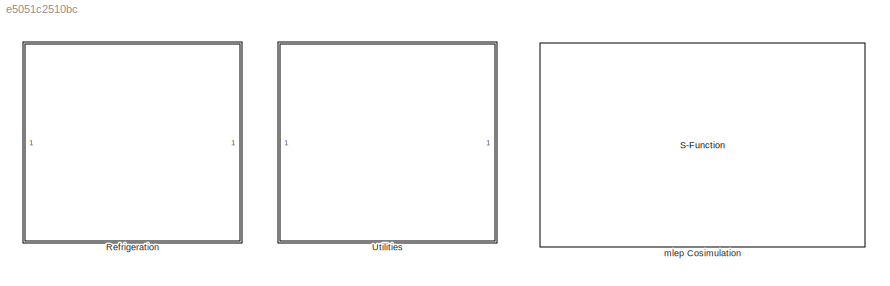
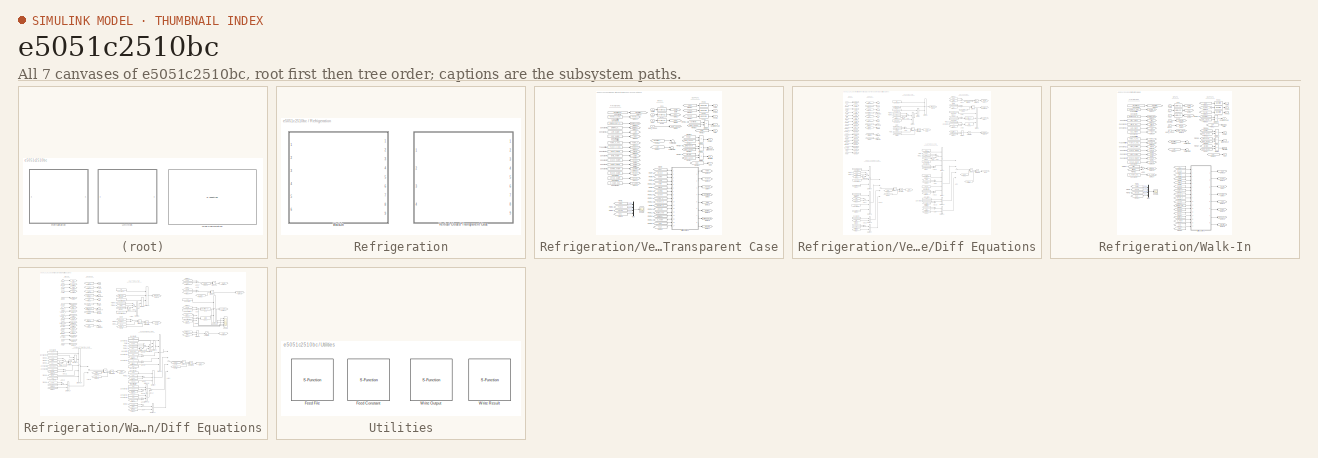
[diagram: thumbnail index - all 7 canvases of the model, root first then tree order]
MODEL slx_e5051c2510bc
KIND library
CONFIG AbsTol = auto
CONFIG FixedStep = auto
CONFIG MaxStep = auto
CONFIG MinStep = auto
CONFIG RelTol = 1e-3
CONFIG SampleTimeConstraint = Unconstrained
CONFIG Solver = ode45
CONFIG SolverMode = SingleTasking
CONFIG SolverName = ode45
CONFIG StartTime = 0.0
CONFIG StopTime = 10.0
BLOCK [SubSystem] Refrigeration
  Ports = []
  RequestExecContextInheritance = off
BLOCK [SubSystem] Refrigeration/Vertical Closed Transparent Case
  Ports = [4, 9]
  RequestExecContextInheritance = off
BLOCK [Outport] Refrigeration/Vertical Closed Transparent Case/COP
  IconDisplay = Port number
  Port = 5
BLOCK [Constant] Refrigeration/Vertical Closed Transparent Case/Constant1
  Value = Cprod_param
BLOCK [Constant] Refrigeration/Vertical Closed Transparent Case/Constant10
  Value = SCC_param
BLOCK [Constant] Refrigeration/Vertical Closed Transparent Case/Constant11
  Value = LHR_param
BLOCK [Constant] Refrigeration/Vertical Closed Transparent Case/Constant12
  Value = Alpha_param
BLOCK [Constant] Refrigeration/Vertical Closed Transparent Case/Constant13
  Value = p_value_param
BLOCK [Constant] Refrigeration/Vertical Closed Transparent Case/Constant2
  Value = Rcase_param
BLOCK [Constant] Refrigeration/Vertical Closed Transparent Case/Constant3
  Value = Ccase_param
BLOCK [Constant] Refrigeration/Vertical Closed Transparent Case/Constant4
  Value = Beta_param
BLOCK [Constant] Refrigeration/Vertical Closed Transparent Case/Constant5
  Value = Gamma_param
BLOCK [Constant] Refrigeration/Vertical Closed Transparent Case/Constant6
  Value = OperationalCapacity_param
BLOCK [Constant] Refrigeration/Vertical Closed Transparent Case/Constant7
  Value = Cevap_param
BLOCK [Constant] Refrigeration/Vertical Closed Transparent Case/Constant8
  Value = Qinternal_param
BLOCK [Constant] Refrigeration/Vertical Closed Transparent Case/Constant9
  Value = RatedLoad_param
BLOCK [Outport] Refrigeration/Vertical Closed Transparent Case/CoolingLoad
  IconDisplay = Port number
  Port = 4
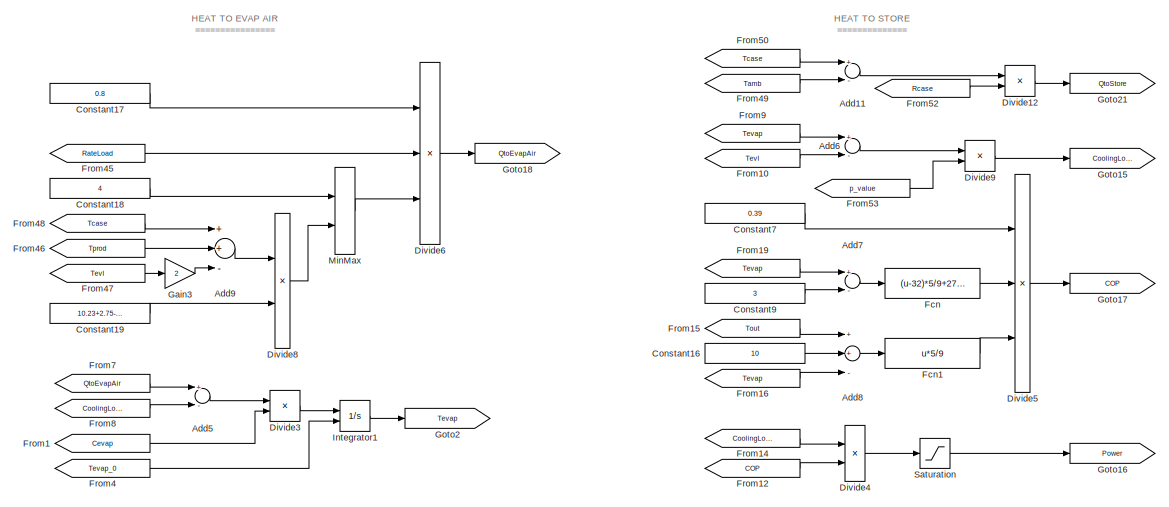
[diagram: Refrigeration/Vertical Closed Transparent Case/Diff Equations - part 1/4, top center region]
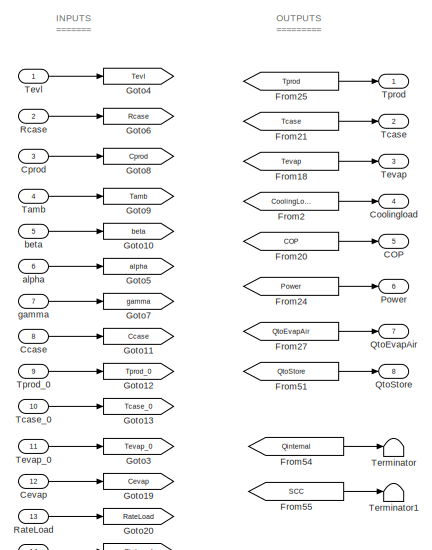
[diagram: Refrigeration/Vertical Closed Transparent Case/Diff Equations - part 2/4, top left region]
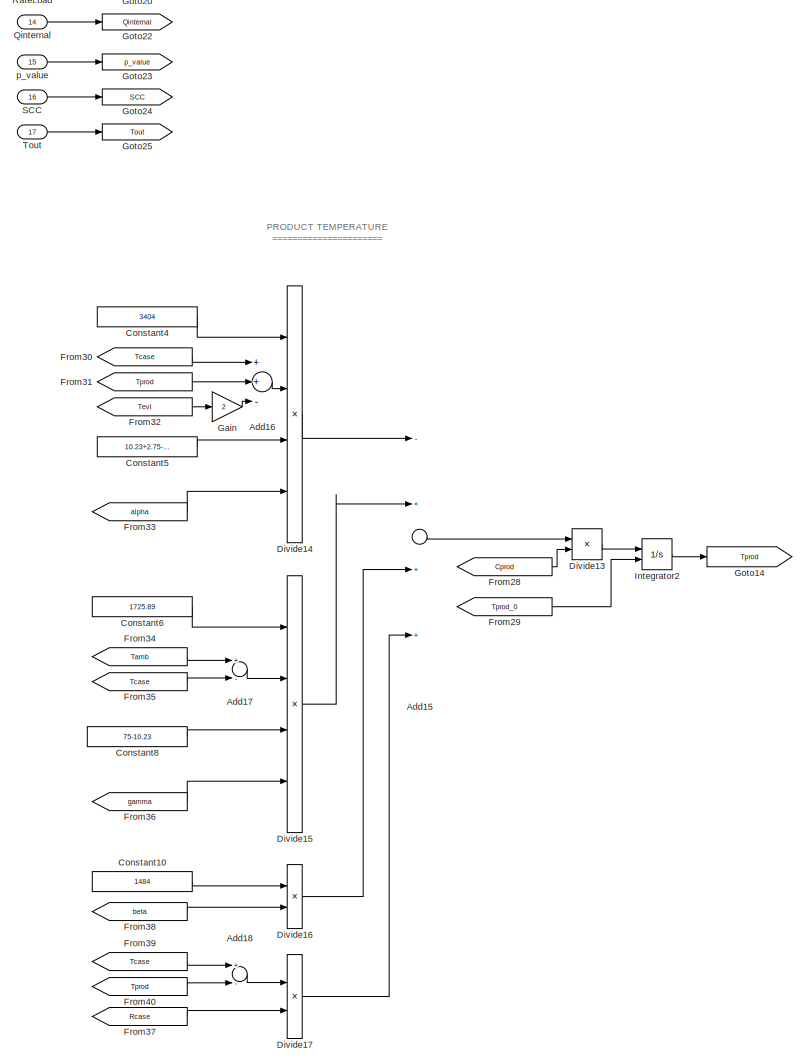
[diagram: Refrigeration/Vertical Closed Transparent Case/Diff Equations - part 3/4, bottom left region]
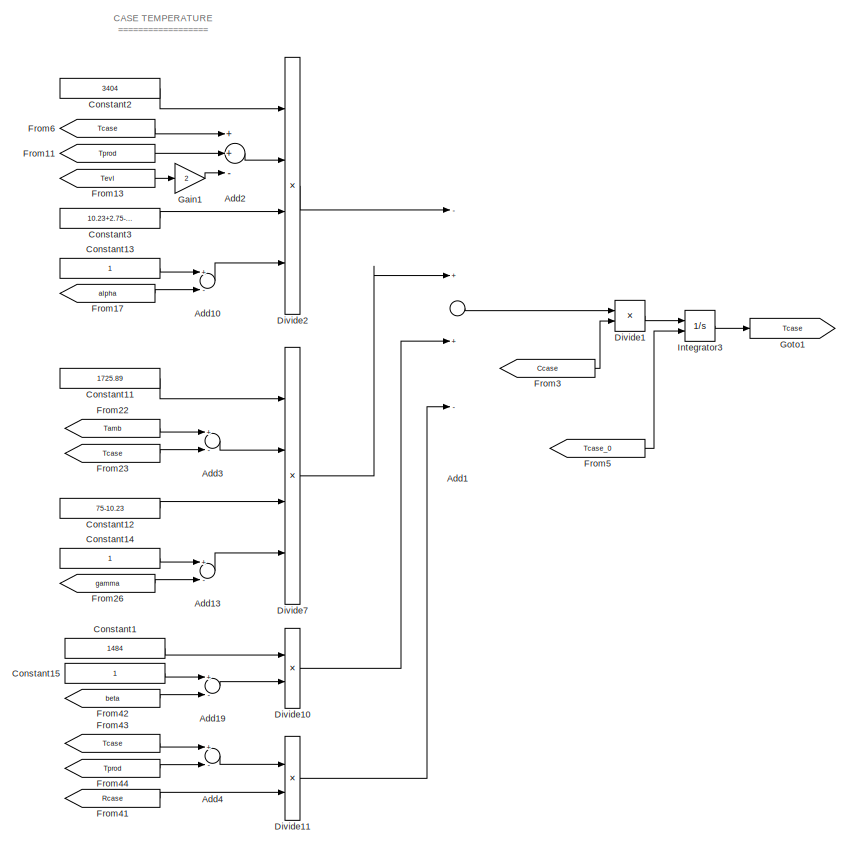
[diagram: Refrigeration/Vertical Closed Transparent Case/Diff Equations - part 4/4, middle right region]
BLOCK [SubSystem] Refrigeration/Vertical Closed Transparent Case/Diff Equations
  Ports = [17, 8]
  RequestExecContextInheritance = off
BLOCK [Sum] Refrigeration/Vertical Closed Transparent Case/Diff Equations/Add1
  InputSameDT = off
  Inputs = -++-
  OutDataTypeStr = Inherit: Inherit via internal rule
  Ports = [4, 1]
  SaturateOnIntegerOverflow = off
BLOCK [Sum] Refrigeration/Vertical Closed Transparent Case/Diff Equations/Add10
  InputSameDT = off
  Inputs = +-
  OutDataTypeStr = Inherit: Inherit via internal rule
  Ports = [2, 1]
  SaturateOnIntegerOverflow = off
BLOCK [Sum] Refrigeration/Vertical Closed Transparent Case/Diff Equations/Add11
  InputSameDT = off
  Inputs = +-
  OutDataTypeStr = Inherit: Inherit via internal rule
  Ports = [2, 1]
  SaturateOnIntegerOverflow = off
BLOCK [Sum] Refrigeration/Vertical Closed Transparent Case/Diff Equations/Add13
  InputSameDT = off
  Inputs = +-
  OutDataTypeStr = Inherit: Inherit via internal rule
  Ports = [2, 1]
  SaturateOnIntegerOverflow = off
BLOCK [Sum] Refrigeration/Vertical Closed Transparent Case/Diff Equations/Add15
  InputSameDT = off
  Inputs = -+++
  OutDataTypeStr = Inherit: Inherit via internal rule
  Ports = [4, 1]
  SaturateOnIntegerOverflow = off
BLOCK [Sum] Refrigeration/Vertical Closed Transparent Case/Diff Equations/Add16
  InputSameDT = off
  Inputs = ++-
  OutDataTypeStr = Inherit: Inherit via internal rule
  Ports = [3, 1]
  SaturateOnIntegerOverflow = off
BLOCK [Sum] Refrigeration/Vertical Closed Transparent Case/Diff Equations/Add17
  InputSameDT = off
  Inputs = +-
  OutDataTypeStr = Inherit: Inherit via internal rule
  Ports = [2, 1]
  SaturateOnIntegerOverflow = off
BLOCK [Sum] Refrigeration/Vertical Closed Transparent Case/Diff Equations/Add18
  InputSameDT = off
  Inputs = +-
  OutDataTypeStr = Inherit: Inherit via internal rule
  Ports = [2, 1]
  SaturateOnIntegerOverflow = off
BLOCK [Sum] Refrigeration/Vertical Closed Transparent Case/Diff Equations/Add19
  InputSameDT = off
  Inputs = +-
  OutDataTypeStr = Inherit: Inherit via internal rule
  Ports = [2, 1]
  SaturateOnIntegerOverflow = off
BLOCK [Sum] Refrigeration/Vertical Closed Transparent Case/Diff Equations/Add2
  InputSameDT = off
  Inputs = ++-
  OutDataTypeStr = Inherit: Inherit via internal rule
  Ports = [3, 1]
  SaturateOnIntegerOverflow = off
BLOCK [Sum] Refrigeration/Vertical Closed Transparent Case/Diff Equations/Add3
  InputSameDT = off
  Inputs = +-
  OutDataTypeStr = Inherit: Inherit via internal rule
  Ports = [2, 1]
  SaturateOnIntegerOverflow = off
BLOCK [Sum] Refrigeration/Vertical Closed Transparent Case/Diff Equations/Add4
  InputSameDT = off
  Inputs = +-
  OutDataTypeStr = Inherit: Inherit via internal rule
  Ports = [2, 1]
  SaturateOnIntegerOverflow = off
BLOCK [Sum] Refrigeration/Vertical Closed Transparent Case/Diff Equations/Add5
  InputSameDT = off
  Inputs = +-
  OutDataTypeStr = Inherit: Inherit via internal rule
  Ports = [2, 1]
  SaturateOnIntegerOverflow = off
BLOCK [Sum] Refrigeration/Vertical Closed Transparent Case/Diff Equations/Add6
  InputSameDT = off
  Inputs = +-
  OutDataTypeStr = Inherit: Inherit via internal rule
  Ports = [2, 1]
  SaturateOnIntegerOverflow = off
BLOCK [Sum] Refrigeration/Vertical Closed Transparent Case/Diff Equations/Add7
  InputSameDT = off
  Inputs = +-
  OutDataTypeStr = Inherit: Inherit via internal rule
  Ports = [2, 1]
  SaturateOnIntegerOverflow = off
BLOCK [Sum] Refrigeration/Vertical Closed Transparent Case/Diff Equations/Add8
  InputSameDT = off
  Inputs = ++-
  OutDataTypeStr = Inherit: Inherit via internal rule
  Ports = [3, 1]
  SaturateOnIntegerOverflow = off
BLOCK [Sum] Refrigeration/Vertical Closed Transparent Case/Diff Equations/Add9
  InputSameDT = off
  Inputs = ++-
  OutDataTypeStr = Inherit: Inherit via internal rule
  Ports = [3, 1]
  SaturateOnIntegerOverflow = off
BLOCK [Outport] Refrigeration/Vertical Closed Transparent Case/Diff Equations/COP
  IconDisplay = Port number
  Port = 5
BLOCK [Inport] Refrigeration/Vertical Closed Transparent Case/Diff Equations/Ccase
  IconDisplay = Port number
  Port = 8
BLOCK [Inport] Refrigeration/Vertical Closed Transparent Case/Diff Equations/Cevap
  IconDisplay = Port number
  Port = 12
BLOCK [Constant] Refrigeration/Vertical Closed Transparent Case/Diff Equations/Constant1
  Value = 1484
BLOCK [Constant] Refrigeration/Vertical Closed Transparent Case/Diff Equations/Constant10
  Value = 1484
BLOCK [Constant] Refrigeration/Vertical Closed Transparent Case/Diff Equations/Constant11
  Value = 1725.89
BLOCK [Constant] Refrigeration/Vertical Closed Transparent Case/Diff Equations/Constant12
  Value = 75-10.23
BLOCK [Constant] Refrigeration/Vertical Closed Transparent Case/Diff Equations/Constant13
BLOCK [Constant] Refrigeration/Vertical Closed Transparent Case/Diff Equations/Constant14
BLOCK [Constant] Refrigeration/Vertical Closed Transparent Case/Diff Equations/Constant15
BLOCK [Constant] Refrigeration/Vertical Closed Transparent Case/Diff Equations/Constant16
  Value = 10
BLOCK [Constant] Refrigeration/Vertical Closed Transparent Case/Diff Equations/Constant17
  Value = 0.8
BLOCK [Constant] Refrigeration/Vertical Closed Transparent Case/Diff Equations/Constant18
  Value = 4
BLOCK [Constant] Refrigeration/Vertical Closed Transparent Case/Diff Equations/Constant19
  Value = 10.23+2.75-0.28
BLOCK [Constant] Refrigeration/Vertical Closed Transparent Case/Diff Equations/Constant2
  Value = 3404
BLOCK [Constant] Refrigeration/Vertical Closed Transparent Case/Diff Equations/Constant3
  Value = 10.23+2.75-2*0.28
BLOCK [Constant] Refrigeration/Vertical Closed Transparent Case/Diff Equations/Constant4
  Value = 3404
BLOCK [Constant] Refrigeration/Vertical Closed Transparent Case/Diff Equations/Constant5
  Value = 10.23+2.75-2*0.28
BLOCK [Constant] Refrigeration/Vertical Closed Transparent Case/Diff Equations/Constant6
  Value = 1725.89
BLOCK [Constant] Refrigeration/Vertical Closed Transparent Case/Diff Equations/Constant7
  Value = 0.39
BLOCK [Constant] Refrigeration/Vertical Closed Transparent Case/Diff Equations/Constant8
  Value = 75-10.23
BLOCK [Constant] Refrigeration/Vertical Closed Transparent Case/Diff Equations/Constant9
  Value = 3
BLOCK [Outport] Refrigeration/Vertical Closed Transparent Case/Diff Equations/Coolingload
  IconDisplay = Port number
  Port = 4
BLOCK [Inport] Refrigeration/Vertical Closed Transparent Case/Diff Equations/Cprod
  IconDisplay = Port number
  Port = 3
BLOCK [Product] Refrigeration/Vertical Closed Transparent Case/Diff Equations/Divide1
  InputSameDT = off
  Inputs = */
  OutDataTypeStr = Inherit: Inherit via internal rule
  Ports = [2, 1]
  RndMeth = Floor
  SaturateOnIntegerOverflow = off
BLOCK [Product] Refrigeration/Vertical Closed Transparent Case/Diff Equations/Divide10
  InputSameDT = off
  Inputs = **
  OutDataTypeStr = Inherit: Inherit via internal rule
  Ports = [2, 1]
  RndMeth = Floor
  SaturateOnIntegerOverflow = off
BLOCK [Product] Refrigeration/Vertical Closed Transparent Case/Diff Equations/Divide11
  InputSameDT = off
  Inputs = */
  OutDataTypeStr = Inherit: Inherit via internal rule
  Ports = [2, 1]
  RndMeth = Floor
  SaturateOnIntegerOverflow = off
BLOCK [Product] Refrigeration/Vertical Closed Transparent Case/Diff Equations/Divide12
  InputSameDT = off
  Inputs = */
  OutDataTypeStr = Inherit: Inherit via internal rule
  Ports = [2, 1]
  RndMeth = Floor
  SaturateOnIntegerOverflow = off
BLOCK [Product] Refrigeration/Vertical Closed Transparent Case/Diff Equations/Divide13
  InputSameDT = off
  Inputs = */
  OutDataTypeStr = Inherit: Inherit via internal rule
  Ports = [2, 1]
  RndMeth = Floor
  SaturateOnIntegerOverflow = off
BLOCK [Product] Refrigeration/Vertical Closed Transparent Case/Diff Equations/Divide14
  InputSameDT = off
  Inputs = **/*
  OutDataTypeStr = Inherit: Inherit via internal rule
  Ports = [4, 1]
  RndMeth = Floor
  SaturateOnIntegerOverflow = off
BLOCK [Product] Refrigeration/Vertical Closed Transparent Case/Diff Equations/Divide15
  InputSameDT = off
  Inputs = **/*
  OutDataTypeStr = Inherit: Inherit via internal rule
  Ports = [4, 1]
  RndMeth = Floor
  SaturateOnIntegerOverflow = off
BLOCK [Product] Refrigeration/Vertical Closed Transparent Case/Diff Equations/Divide16
  InputSameDT = off
  Inputs = **
  OutDataTypeStr = Inherit: Inherit via internal rule
  Ports = [2, 1]
  RndMeth = Floor
  SaturateOnIntegerOverflow = off
BLOCK [Product] Refrigeration/Vertical Closed Transparent Case/Diff Equations/Divide17
  InputSameDT = off
  Inputs = */
  OutDataTypeStr = Inherit: Inherit via internal rule
  Ports = [2, 1]
  RndMeth = Floor
  SaturateOnIntegerOverflow = off
BLOCK [Product] Refrigeration/Vertical Closed Transparent Case/Diff Equations/Divide2
  InputSameDT = off
  Inputs = **/*
  OutDataTypeStr = Inherit: Inherit via internal rule
  Ports = [4, 1]
  RndMeth = Floor
  SaturateOnIntegerOverflow = off
BLOCK [Product] Refrigeration/Vertical Closed Transparent Case/Diff Equations/Divide3
  InputSameDT = off
  Inputs = */
  OutDataTypeStr = Inherit: Inherit via internal rule
  Ports = [2, 1]
  RndMeth = Floor
  SaturateOnIntegerOverflow = off
BLOCK [Product] Refrigeration/Vertical Closed Transparent Case/Diff Equations/Divide4
  InputSameDT = off
  Inputs = */
  OutDataTypeStr = Inherit: Inherit via internal rule
  Ports = [2, 1]
  RndMeth = Floor
  SaturateOnIntegerOverflow = off
BLOCK [Product] Refrigeration/Vertical Closed Transparent Case/Diff Equations/Divide5
  InputSameDT = off
  Inputs = **/
  OutDataTypeStr = Inherit: Inherit via internal rule
  Ports = [3, 1]
  RndMeth = Floor
  SaturateOnIntegerOverflow = off
BLOCK [Product] Refrigeration/Vertical Closed Transparent Case/Diff Equations/Divide6
  InputSameDT = off
  Inputs = ***
  OutDataTypeStr = Inherit: Inherit via internal rule
  Ports = [3, 1]
  RndMeth = Floor
  SaturateOnIntegerOverflow = off
BLOCK [Product] Refrigeration/Vertical Closed Transparent Case/Diff Equations/Divide7
  InputSameDT = off
  Inputs = **/*
  OutDataTypeStr = Inherit: Inherit via internal rule
  Ports = [4, 1]
  RndMeth = Floor
  SaturateOnIntegerOverflow = off
BLOCK [Product] Refrigeration/Vertical Closed Transparent Case/Diff Equations/Divide8
  InputSameDT = off
  Inputs = */
  OutDataTypeStr = Inherit: Inherit via internal rule
  Ports = [2, 1]
  RndMeth = Floor
  SaturateOnIntegerOverflow = off
BLOCK [Product] Refrigeration/Vertical Closed Transparent Case/Diff Equations/Divide9
  InputSameDT = off
  Inputs = **
  OutDataTypeStr = Inherit: Inherit via internal rule
  Ports = [2, 1]
  RndMeth = Floor
  SaturateOnIntegerOverflow = off
BLOCK [Fcn] Refrigeration/Vertical Closed Transparent Case/Diff Equations/Fcn
  Expr = (u-32)*5/9+273.15
BLOCK [Fcn] Refrigeration/Vertical Closed Transparent Case/Diff Equations/Fcn1
  Expr = u*5/9
BLOCK [From] Refrigeration/Vertical Closed Transparent Case/Diff Equations/From1
  GotoTag = Cevap
BLOCK [From] Refrigeration/Vertical Closed Transparent Case/Diff Equations/From10
  GotoTag = Tevl
BLOCK [From] Refrigeration/Vertical Closed Transparent Case/Diff Equations/From11
  GotoTag = Tprod
BLOCK [From] Refrigeration/Vertical Closed Transparent Case/Diff Equations/From12
  GotoTag = COP
BLOCK [From] Refrigeration/Vertical Closed Transparent Case/Diff Equations/From13
  GotoTag = Tevl
BLOCK [From] Refrigeration/Vertical Closed Transparent Case/Diff Equations/From14
  GotoTag = CoolingLoad
BLOCK [From] Refrigeration/Vertical Closed Transparent Case/Diff Equations/From15
  GotoTag = Tout
BLOCK [From] Refrigeration/Vertical Closed Transparent Case/Diff Equations/From16
  GotoTag = Tevap
BLOCK [From] Refrigeration/Vertical Closed Transparent Case/Diff Equations/From17
  GotoTag = alpha
BLOCK [From] Refrigeration/Vertical Closed Transparent Case/Diff Equations/From18
  GotoTag = Tevap
BLOCK [From] Refrigeration/Vertical Closed Transparent Case/Diff Equations/From19
  GotoTag = Tevap
BLOCK [From] Refrigeration/Vertical Closed Transparent Case/Diff Equations/From2
  GotoTag = CoolingLoad
BLOCK [From] Refrigeration/Vertical Closed Transparent Case/Diff Equations/From20
  GotoTag = COP
BLOCK [From] Refrigeration/Vertical Closed Transparent Case/Diff Equations/From21
  GotoTag = Tcase
BLOCK [From] Refrigeration/Vertical Closed Transparent Case/Diff Equations/From22
  GotoTag = Tamb
BLOCK [From] Refrigeration/Vertical Closed Transparent Case/Diff Equations/From23
  GotoTag = Tcase
BLOCK [From] Refrigeration/Vertical Closed Transparent Case/Diff Equations/From24
  GotoTag = Power
BLOCK [From] Refrigeration/Vertical Closed Transparent Case/Diff Equations/From25
  GotoTag = Tprod
BLOCK [From] Refrigeration/Vertical Closed Transparent Case/Diff Equations/From26
  GotoTag = gamma
BLOCK [From] Refrigeration/Vertical Closed Transparent Case/Diff Equations/From27
  GotoTag = QtoEvapAir
BLOCK [From] Refrigeration/Vertical Closed Transparent Case/Diff Equations/From28
  GotoTag = Cprod
BLOCK [From] Refrigeration/Vertical Closed Transparent Case/Diff Equations/From29
  GotoTag = Tprod_0
BLOCK [From] Refrigeration/Vertical Closed Transparent Case/Diff Equations/From3
  GotoTag = Ccase
BLOCK [From] Refrigeration/Vertical Closed Transparent Case/Diff Equations/From30
  GotoTag = Tcase
BLOCK [From] Refrigeration/Vertical Closed Transparent Case/Diff Equations/From31
  GotoTag = Tprod
BLOCK [From] Refrigeration/Vertical Closed Transparent Case/Diff Equations/From32
  GotoTag = Tevl
BLOCK [From] Refrigeration/Vertical Closed Transparent Case/Diff Equations/From33
  GotoTag = alpha
BLOCK [From] Refrigeration/Vertical Closed Transparent Case/Diff Equations/From34
  GotoTag = Tamb
BLOCK [From] Refrigeration/Vertical Closed Transparent Case/Diff Equations/From35
  GotoTag = Tcase
BLOCK [From] Refrigeration/Vertical Closed Transparent Case/Diff Equations/From36
  GotoTag = gamma
BLOCK [From] Refrigeration/Vertical Closed Transparent Case/Diff Equations/From37
  GotoTag = Rcase
BLOCK [From] Refrigeration/Vertical Closed Transparent Case/Diff Equations/From38
  GotoTag = beta
BLOCK [From] Refrigeration/Vertical Closed Transparent Case/Diff Equations/From39
  GotoTag = Tcase
BLOCK [From] Refrigeration/Vertical Closed Transparent Case/Diff Equations/From4
  GotoTag = Tevap_0
BLOCK [From] Refrigeration/Vertical Closed Transparent Case/Diff Equations/From40
  GotoTag = Tprod
BLOCK [From] Refrigeration/Vertical Closed Transparent Case/Diff Equations/From41
  GotoTag = Rcase
BLOCK [From] Refrigeration/Vertical Closed Transparent Case/Diff Equations/From42
  GotoTag = beta
BLOCK [From] Refrigeration/Vertical Closed Transparent Case/Diff Equations/From43
  GotoTag = Tcase
BLOCK [From] Refrigeration/Vertical Closed Transparent Case/Diff Equations/From44
  GotoTag = Tprod
BLOCK [From] Refrigeration/Vertical Closed Transparent Case/Diff Equations/From45
  GotoTag = RateLoad
BLOCK [From] Refrigeration/Vertical Closed Transparent Case/Diff Equations/From46
  GotoTag = Tprod
BLOCK [From] Refrigeration/Vertical Closed Transparent Case/Diff Equations/From47
  GotoTag = Tevl
BLOCK [From] Refrigeration/Vertical Closed Transparent Case/Diff Equations/From48
  GotoTag = Tcase
BLOCK [From] Refrigeration/Vertical Closed Transparent Case/Diff Equations/From49
  GotoTag = Tamb
BLOCK [From] Refrigeration/Vertical Closed Transparent Case/Diff Equations/From5
  GotoTag = Tcase_0
BLOCK [From] Refrigeration/Vertical Closed Transparent Case/Diff Equations/From50
  GotoTag = Tcase
BLOCK [From] Refrigeration/Vertical Closed Transparent Case/Diff Equations/From51
  GotoTag = QtoStore
BLOCK [From] Refrigeration/Vertical Closed Transparent Case/Diff Equations/From52
  GotoTag = Rcase
BLOCK [From] Refrigeration/Vertical Closed Transparent Case/Diff Equations/From53
  GotoTag = p_value
BLOCK [From] Refrigeration/Vertical Closed Transparent Case/Diff Equations/From54
  GotoTag = Qinternal
BLOCK [From] Refrigeration/Vertical Closed Transparent Case/Diff Equations/From55
  GotoTag = SCC
BLOCK [From] Refrigeration/Vertical Closed Transparent Case/Diff Equations/From6
  GotoTag = Tcase
BLOCK [From] Refrigeration/Vertical Closed Transparent Case/Diff Equations/From7
  GotoTag = QtoEvapAir
BLOCK [From] Refrigeration/Vertical Closed Transparent Case/Diff Equations/From8
  GotoTag = CoolingLoad
BLOCK [From] Refrigeration/Vertical Closed Transparent Case/Diff Equations/From9
  GotoTag = Tevap
BLOCK [Gain] Refrigeration/Vertical Closed Transparent Case/Diff Equations/Gain
  Gain = 2
  OutDataTypeStr = Inherit: Inherit via internal rule
  ParamDataTypeStr = Inherit: Inherit via internal rule
  SaturateOnIntegerOverflow = off
BLOCK [Gain] Refrigeration/Vertical Closed Transparent Case/Diff Equations/Gain1
  Gain = 2
  OutDataTypeStr = Inherit: Inherit via internal rule
  ParamDataTypeStr = Inherit: Inherit via internal rule
  SaturateOnIntegerOverflow = off
BLOCK [Gain] Refrigeration/Vertical Closed Transparent Case/Diff Equations/Gain3
  Gain = 2
  OutDataTypeStr = Inherit: Inherit via internal rule
  ParamDataTypeStr = Inherit: Inherit via internal rule
  SaturateOnIntegerOverflow = off
BLOCK [Goto] Refrigeration/Vertical Closed Transparent Case/Diff Equations/Goto1
  GotoTag = Tcase
BLOCK [Goto] Refrigeration/Vertical Closed Transparent Case/Diff Equations/Goto10
  GotoTag = beta
BLOCK [Goto] Refrigeration/Vertical Closed Transparent Case/Diff Equations/Goto11
  GotoTag = Ccase
BLOCK [Goto] Refrigeration/Vertical Closed Transparent Case/Diff Equations/Goto12
  GotoTag = Tprod_0
BLOCK [Goto] Refrigeration/Vertical Closed Transparent Case/Diff Equations/Goto13
  GotoTag = Tcase_0
BLOCK [Goto] Refrigeration/Vertical Closed Transparent Case/Diff Equations/Goto14
  GotoTag = Tprod
BLOCK [Goto] Refrigeration/Vertical Closed Transparent Case/Diff Equations/Goto15
  GotoTag = CoolingLoad
BLOCK [Goto] Refrigeration/Vertical Closed Transparent Case/Diff Equations/Goto16
  GotoTag = Power
BLOCK [Goto] Refrigeration/Vertical Closed Transparent Case/Diff Equations/Goto17
  GotoTag = COP
BLOCK [Goto] Refrigeration/Vertical Closed Transparent Case/Diff Equations/Goto18
  GotoTag = QtoEvapAir
BLOCK [Goto] Refrigeration/Vertical Closed Transparent Case/Diff Equations/Goto19
  GotoTag = Cevap
BLOCK [Goto] Refrigeration/Vertical Closed Transparent Case/Diff Equations/Goto2
  GotoTag = Tevap
BLOCK [Goto] Refrigeration/Vertical Closed Transparent Case/Diff Equations/Goto20
  GotoTag = RateLoad
BLOCK [Goto] Refrigeration/Vertical Closed Transparent Case/Diff Equations/Goto21
  GotoTag = QtoStore
BLOCK [Goto] Refrigeration/Vertical Closed Transparent Case/Diff Equations/Goto22
  GotoTag = Qinternal
BLOCK [Goto] Refrigeration/Vertical Closed Transparent Case/Diff Equations/Goto23
  GotoTag = p_value
BLOCK [Goto] Refrigeration/Vertical Closed Transparent Case/Diff Equations/Goto24
  GotoTag = SCC
BLOCK [Goto] Refrigeration/Vertical Closed Transparent Case/Diff Equations/Goto25
  GotoTag = Tout
BLOCK [Goto] Refrigeration/Vertical Closed Transparent Case/Diff Equations/Goto3
  GotoTag = Tevap_0
BLOCK [Goto] Refrigeration/Vertical Closed Transparent Case/Diff Equations/Goto4
  GotoTag = Tevl
BLOCK [Goto] Refrigeration/Vertical Closed Transparent Case/Diff Equations/Goto5
  GotoTag = alpha
BLOCK [Goto] Refrigeration/Vertical Closed Transparent Case/Diff Equations/Goto6
  GotoTag = Rcase
BLOCK [Goto] Refrigeration/Vertical Closed Transparent Case/Diff Equations/Goto7
  GotoTag = gamma
BLOCK [Goto] Refrigeration/Vertical Closed Transparent Case/Diff Equations/Goto8
  GotoTag = Cprod
BLOCK [Goto] Refrigeration/Vertical Closed Transparent Case/Diff Equations/Goto9
  GotoTag = Tamb
BLOCK [Integrator] Refrigeration/Vertical Closed Transparent Case/Diff Equations/Integrator1
  InitialConditionSource = external
  Ports = [2, 1]
BLOCK [Integrator] Refrigeration/Vertical Closed Transparent Case/Diff Equations/Integrator2
  InitialConditionSource = external
  Ports = [2, 1]
BLOCK [Integrator] Refrigeration/Vertical Closed Transparent Case/Diff Equations/Integrator3
  InitialConditionSource = external
  Ports = [2, 1]
BLOCK [MinMax] Refrigeration/Vertical Closed Transparent Case/Diff Equations/MinMax
  InputSameDT = off
  Inputs = 2
  Ports = [2, 1]
  SaturateOnIntegerOverflow = off
BLOCK [Outport] Refrigeration/Vertical Closed Transparent Case/Diff Equations/Power
  IconDisplay = Port number
  Port = 6
BLOCK [Inport] Refrigeration/Vertical Closed Transparent Case/Diff Equations/Qinternal
  IconDisplay = Port number
  Port = 14
BLOCK [Outport] Refrigeration/Vertical Closed Transparent Case/Diff Equations/QtoEvapAir
  IconDisplay = Port number
  Port = 7
BLOCK [Outport] Refrigeration/Vertical Closed Transparent Case/Diff Equations/QtoStore
  IconDisplay = Port number
  Port = 8
BLOCK [Inport] Refrigeration/Vertical Closed Transparent Case/Diff Equations/RateLoad
  IconDisplay = Port number
  Port = 13
BLOCK [Inport] Refrigeration/Vertical Closed Transparent Case/Diff Equations/Rcase
  IconDisplay = Port number
  Port = 2
BLOCK [Inport] Refrigeration/Vertical Closed Transparent Case/Diff Equations/SCC
  IconDisplay = Port number
  Port = 16
BLOCK [Saturate] Refrigeration/Vertical Closed Transparent Case/Diff Equations/Saturation
  InputPortMap = u0
  LowerLimit = 0
  Ports = [1, 1]
  UpperLimit = Inf
BLOCK [Inport] Refrigeration/Vertical Closed Transparent Case/Diff Equations/Tamb
  IconDisplay = Port number
  Port = 4
BLOCK [Outport] Refrigeration/Vertical Closed Transparent Case/Diff Equations/Tcase
  IconDisplay = Port number
  Port = 2
BLOCK [Inport] Refrigeration/Vertical Closed Transparent Case/Diff Equations/Tcase_0
  IconDisplay = Port number
  Port = 10
BLOCK [Terminator] Refrigeration/Vertical Closed Transparent Case/Diff Equations/Terminator
BLOCK [Terminator] Refrigeration/Vertical Closed Transparent Case/Diff Equations/Terminator1
BLOCK [Outport] Refrigeration/Vertical Closed Transparent Case/Diff Equations/Tevap
  IconDisplay = Port number
  Port = 3
BLOCK [Inport] Refrigeration/Vertical Closed Transparent Case/Diff Equations/Tevap_0
  IconDisplay = Port number
  Port = 11
BLOCK [Inport] Refrigeration/Vertical Closed Transparent Case/Diff Equations/Tevl
  IconDisplay = Port number
BLOCK [Inport] Refrigeration/Vertical Closed Transparent Case/Diff Equations/Tout
  IconDisplay = Port number
  Port = 17
BLOCK [Outport] Refrigeration/Vertical Closed Transparent Case/Diff Equations/Tprod
  IconDisplay = Port number
BLOCK [Inport] Refrigeration/Vertical Closed Transparent Case/Diff Equations/Tprod_0
  IconDisplay = Port number
  Port = 9
BLOCK [Inport] Refrigeration/Vertical Closed Transparent Case/Diff Equations/alpha
  IconDisplay = Port number
  Port = 6
BLOCK [Inport] Refrigeration/Vertical Closed Transparent Case/Diff Equations/beta
  IconDisplay = Port number
  Port = 5
BLOCK [Inport] Refrigeration/Vertical Closed Transparent Case/Diff Equations/gamma
  IconDisplay = Port number
  Port = 7
BLOCK [Inport] Refrigeration/Vertical Closed Transparent Case/Diff Equations/p_value
  IconDisplay = Port number
  Port = 15
BLOCK [Product] Refrigeration/Vertical Closed Transparent Case/Divide
  InputSameDT = off
  Inputs = **
  OutDataTypeStr = Inherit: Inherit via internal rule
  Ports = [2, 1]
  RndMeth = Floor
  SaturateOnIntegerOverflow = off
BLOCK [Product] Refrigeration/Vertical Closed Transparent Case/Divide1
  InputSameDT = off
  Inputs = **
  OutDataTypeStr = Inherit: Inherit via internal rule
  Ports = [2, 1]
  RndMeth = Floor
  SaturateOnIntegerOverflow = off
BLOCK [Product] Refrigeration/Vertical Closed Transparent Case/Divide2
  InputSameDT = off
  Inputs = **
  OutDataTypeStr = Inherit: Inherit via internal rule
  Ports = [2, 1]
  RndMeth = Floor
  SaturateOnIntegerOverflow = off
BLOCK [Product] Refrigeration/Vertical Closed Transparent Case/Divide3
  InputSameDT = off
  Inputs = **
  OutDataTypeStr = Inherit: Inherit via internal rule
  Ports = [2, 1]
  RndMeth = Floor
  SaturateOnIntegerOverflow = off
BLOCK [Fcn] Refrigeration/Vertical Closed Transparent Case/Fcn
  Expr = u*9/5+32
BLOCK [Fcn] Refrigeration/Vertical Closed Transparent Case/Fcn1
  Expr = u*9/5+32
BLOCK [Fcn] Refrigeration/Vertical Closed Transparent Case/Fcn2
  Expr = u*9/5+32
BLOCK [Fcn] Refrigeration/Vertical Closed Transparent Case/Fcn3
  Expr = (u-32)*5/9
BLOCK [Fcn] Refrigeration/Vertical Closed Transparent Case/Fcn4
  Expr = (u-32)*5/9
BLOCK [Fcn] Refrigeration/Vertical Closed Transparent Case/Fcn5
  Expr = (u-32)*5/9
BLOCK [From] Refrigeration/Vertical Closed Transparent Case/From1
  GotoTag = Tprod
BLOCK [From] Refrigeration/Vertical Closed Transparent Case/From10
  GotoTag = Cevap
BLOCK [From] Refrigeration/Vertical Closed Transparent Case/From11
  GotoTag = RatedLoad
BLOCK [From] Refrigeration/Vertical Closed Transparent Case/From12
  GotoTag = Tprod
BLOCK [From] Refrigeration/Vertical Closed Transparent Case/From13
  GotoTag = Tcase
BLOCK [From] Refrigeration/Vertical Closed Transparent Case/From14
  GotoTag = Tevap
BLOCK [From] Refrigeration/Vertical Closed Transparent Case/From15
  GotoTag = beta
BLOCK [From] Refrigeration/Vertical Closed Transparent Case/From16
  GotoTag = Coolingload
BLOCK [From] Refrigeration/Vertical Closed Transparent Case/From17
  GotoTag = COP
BLOCK [From] Refrigeration/Vertical Closed Transparent Case/From18
  GotoTag = Power
BLOCK [From] Refrigeration/Vertical Closed Transparent Case/From19
  GotoTag = Ccase
BLOCK [From] Refrigeration/Vertical Closed Transparent Case/From2
  GotoTag = Tcase
BLOCK [From] Refrigeration/Vertical Closed Transparent Case/From20
  GotoTag = Tevl
BLOCK [From] Refrigeration/Vertical Closed Transparent Case/From21
  GotoTag = Tprod_0
BLOCK [From] Refrigeration/Vertical Closed Transparent Case/From22
  GotoTag = Tcase_0
BLOCK [From] Refrigeration/Vertical Closed Transparent Case/From23
  GotoTag = QtoStore
BLOCK [From] Refrigeration/Vertical Closed Transparent Case/From24
  GotoTag = QtoEvapAir
BLOCK [From] Refrigeration/Vertical Closed Transparent Case/From25
  GotoTag = gamma
BLOCK [From] Refrigeration/Vertical Closed Transparent Case/From26
  GotoTag = Qinternal
BLOCK [From] Refrigeration/Vertical Closed Transparent Case/From27
  GotoTag = Num_cases
BLOCK [From] Refrigeration/Vertical Closed Transparent Case/From28
  GotoTag = Num_cases
BLOCK [From] Refrigeration/Vertical Closed Transparent Case/From29
  GotoTag = Num_cases
BLOCK [From] Refrigeration/Vertical Closed Transparent Case/From3
  GotoTag = Tevap
BLOCK [From] Refrigeration/Vertical Closed Transparent Case/From30
  GotoTag = Num_cases
BLOCK [From] Refrigeration/Vertical Closed Transparent Case/From31
  GotoTag = p_value
BLOCK [From] Refrigeration/Vertical Closed Transparent Case/From32
  GotoTag = Tout
BLOCK [From] Refrigeration/Vertical Closed Transparent Case/From33
  GotoTag = SCC
BLOCK [From] Refrigeration/Vertical Closed Transparent Case/From35
  GotoTag = SCC
BLOCK [From] Refrigeration/Vertical Closed Transparent Case/From37
  GotoTag = LHR
BLOCK [From] Refrigeration/Vertical Closed Transparent Case/From4
  GotoTag = Tevl
BLOCK [From] Refrigeration/Vertical Closed Transparent Case/From5
  GotoTag = Tevap_0
BLOCK [From] Refrigeration/Vertical Closed Transparent Case/From56
  GotoTag = OperationalCapacity
BLOCK [From] Refrigeration/Vertical Closed Transparent Case/From6
  GotoTag = alpha
BLOCK [From] Refrigeration/Vertical Closed Transparent Case/From7
  GotoTag = Rcase
BLOCK [From] Refrigeration/Vertical Closed Transparent Case/From8
  GotoTag = Cprod
BLOCK [From] Refrigeration/Vertical Closed Transparent Case/From9
  GotoTag = Tamb
BLOCK [Goto] Refrigeration/Vertical Closed Transparent Case/Goto
  GotoTag = Tamb
BLOCK [Goto] Refrigeration/Vertical Closed Transparent Case/Goto1
  GotoTag = Rcase
BLOCK [Goto] Refrigeration/Vertical Closed Transparent Case/Goto10
  GotoTag = gamma
BLOCK [Goto] Refrigeration/Vertical Closed Transparent Case/Goto11
  GotoTag = Tprod
BLOCK [Goto] Refrigeration/Vertical Closed Transparent Case/Goto12
  GotoTag = Tcase
BLOCK [Goto] Refrigeration/Vertical Closed Transparent Case/Goto13
  GotoTag = COP
BLOCK [Goto] Refrigeration/Vertical Closed Transparent Case/Goto14
  GotoTag = Power
BLOCK [Goto] Refrigeration/Vertical Closed Transparent Case/Goto15
  GotoTag = QtoEvapAir
BLOCK [Goto] Refrigeration/Vertical Closed Transparent Case/Goto16
  GotoTag = Cevap
BLOCK [Goto] Refrigeration/Vertical Closed Transparent Case/Goto17
  GotoTag = QtoStore
BLOCK [Goto] Refrigeration/Vertical Closed Transparent Case/Goto18
  GotoTag = p_value
BLOCK [Goto] Refrigeration/Vertical Closed Transparent Case/Goto2
  GotoTag = Tevl
BLOCK [Goto] Refrigeration/Vertical Closed Transparent Case/Goto20
  GotoTag = OperationalCapacity
BLOCK [Goto] Refrigeration/Vertical Closed Transparent Case/Goto21
  GotoTag = Tevap_0
BLOCK [Goto] Refrigeration/Vertical Closed Transparent Case/Goto22
  GotoTag = Qinternal
BLOCK [Goto] Refrigeration/Vertical Closed Transparent Case/Goto23
  GotoTag = Tprod_0
BLOCK [Goto] Refrigeration/Vertical Closed Transparent Case/Goto24
  GotoTag = RatedLoad
BLOCK [Goto] Refrigeration/Vertical Closed Transparent Case/Goto25
  GotoTag = SCC
BLOCK [Goto] Refrigeration/Vertical Closed Transparent Case/Goto26
  GotoTag = LHR
BLOCK [Goto] Refrigeration/Vertical Closed Transparent Case/Goto28
  GotoTag = alpha
BLOCK [Goto] Refrigeration/Vertical Closed Transparent Case/Goto29
  GotoTag = Tcase_0
BLOCK [Goto] Refrigeration/Vertical Closed Transparent Case/Goto3
  GotoTag = Coolingload
BLOCK [Goto] Refrigeration/Vertical Closed Transparent Case/Goto4
  GotoTag = Tevap
BLOCK [Goto] Refrigeration/Vertical Closed Transparent Case/Goto5
  GotoTag = Num_cases
BLOCK [Goto] Refrigeration/Vertical Closed Transparent Case/Goto6
  GotoTag = Ccase
BLOCK [Goto] Refrigeration/Vertical Closed Transparent Case/Goto7
  GotoTag = Cprod
BLOCK [Goto] Refrigeration/Vertical Closed Transparent Case/Goto8
  GotoTag = Tout
BLOCK [Goto] Refrigeration/Vertical Closed Transparent Case/Goto9
  GotoTag = beta
BLOCK [Mux] Refrigeration/Vertical Closed Transparent Case/Mux
  DisplayOption = bar
  Ports = [4, 1]
BLOCK [Inport] Refrigeration/Vertical Closed Transparent Case/Num_cases
  IconDisplay = Port number
  Port = 4
BLOCK [Outport] Refrigeration/Vertical Closed Transparent Case/Power
  IconDisplay = Port number
  Port = 6
BLOCK [Outport] Refrigeration/Vertical Closed Transparent Case/QtoEvapAir
  IconDisplay = Port number
  Port = 7
BLOCK [Outport] Refrigeration/Vertical Closed Transparent Case/QtoStore
  IconDisplay = Port number
  Port = 8
BLOCK [Outport] Refrigeration/Vertical Closed Transparent Case/SCC
  IconDisplay = Port number
  Port = 9
BLOCK [Scope] Refrigeration/Vertical Closed Transparent Case/Scope
  Floating = off
  LegendLocations = 0.84115     0.88436     0.11162    0.081955
  LimitDataPoints = off
  NumInputPorts = 1
  Ports = [1]
  ShowLegends = on
  TimeRange = 90000
  YMax = 10
  YMin = -4
BLOCK [Inport] Refrigeration/Vertical Closed Transparent Case/Tamb
  IconDisplay = Port number
BLOCK [Outport] Refrigeration/Vertical Closed Transparent Case/Tcase
  IconDisplay = Port number
  Port = 2
BLOCK [Constant] Refrigeration/Vertical Closed Transparent Case/Tcase Initial1
  Value = Tevap_0_param
BLOCK [Constant] Refrigeration/Vertical Closed Transparent Case/Tcase Initial3
  Value = Tprod_0_param
BLOCK [Constant] Refrigeration/Vertical Closed Transparent Case/Tcase Initial4
  Value = Tcase_0_param
BLOCK [Terminator] Refrigeration/Vertical Closed Transparent Case/Terminator1
BLOCK [Terminator] Refrigeration/Vertical Closed Transparent Case/Terminator2
BLOCK [Outport] Refrigeration/Vertical Closed Transparent Case/Tevap
  IconDisplay = Port number
  Port = 3
BLOCK [Inport] Refrigeration/Vertical Closed Transparent Case/Tevl
  IconDisplay = Port number
  Port = 2
BLOCK [Inport] Refrigeration/Vertical Closed Transparent Case/Tout
  IconDisplay = Port number
  Port = 3
BLOCK [Outport] Refrigeration/Vertical Closed Transparent Case/Tprod
  IconDisplay = Port number
BLOCK [SubSystem] Refrigeration/Walk-In
  Ports = [6, 9]
  RequestExecContextInheritance = off
BLOCK [Sum] Refrigeration/Walk-In/Add1
  InputSameDT = off
  OutDataTypeStr = Inherit: Inherit via internal rule
  Ports = [2, 1]
  SaturateOnIntegerOverflow = off
BLOCK [Outport] Refrigeration/Walk-In/COP
  IconDisplay = Port number
  Port = 5
BLOCK [Constant] Refrigeration/Walk-In/Constant1
  Value = Cprod_param
BLOCK [Constant] Refrigeration/Walk-In/Constant10
  Value = SCC_param
BLOCK [Constant] Refrigeration/Walk-In/Constant11
  Value = LHR_param
BLOCK [Constant] Refrigeration/Walk-In/Constant12
  Value = Alpha_param
BLOCK [Constant] Refrigeration/Walk-In/Constant13
  Value = Qlights_param
BLOCK [Constant] Refrigeration/Walk-In/Constant2
  Value = Rcase_param
BLOCK [Constant] Refrigeration/Walk-In/Constant3
  Value = Ccase_param
BLOCK [Constant] Refrigeration/Walk-In/Constant4
  Value = p_value_param
BLOCK [Constant] Refrigeration/Walk-In/Constant6
  Value = OperationalCapacity_param
BLOCK [Constant] Refrigeration/Walk-In/Constant7
  Value = Cevap_param
BLOCK [Constant] Refrigeration/Walk-In/Constant8
  Value = Qfan_param
BLOCK [Constant] Refrigeration/Walk-In/Constant9
  Value = RatedLoad_param
BLOCK [Outport] Refrigeration/Walk-In/CoolingLoad
  IconDisplay = Port number
  Port = 4
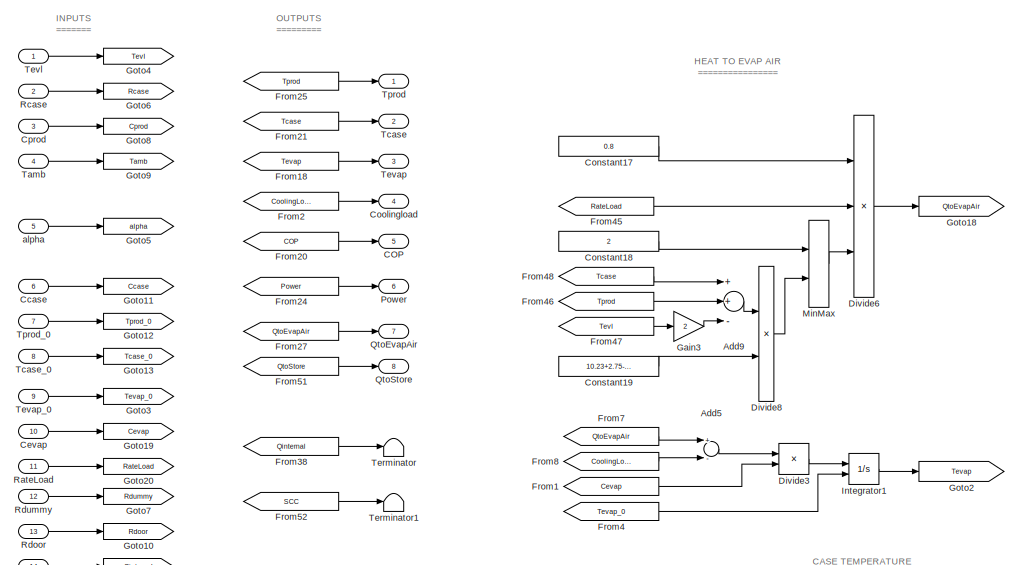
[diagram: Refrigeration/Walk-In/Diff Equations - part 1/3, top center region]
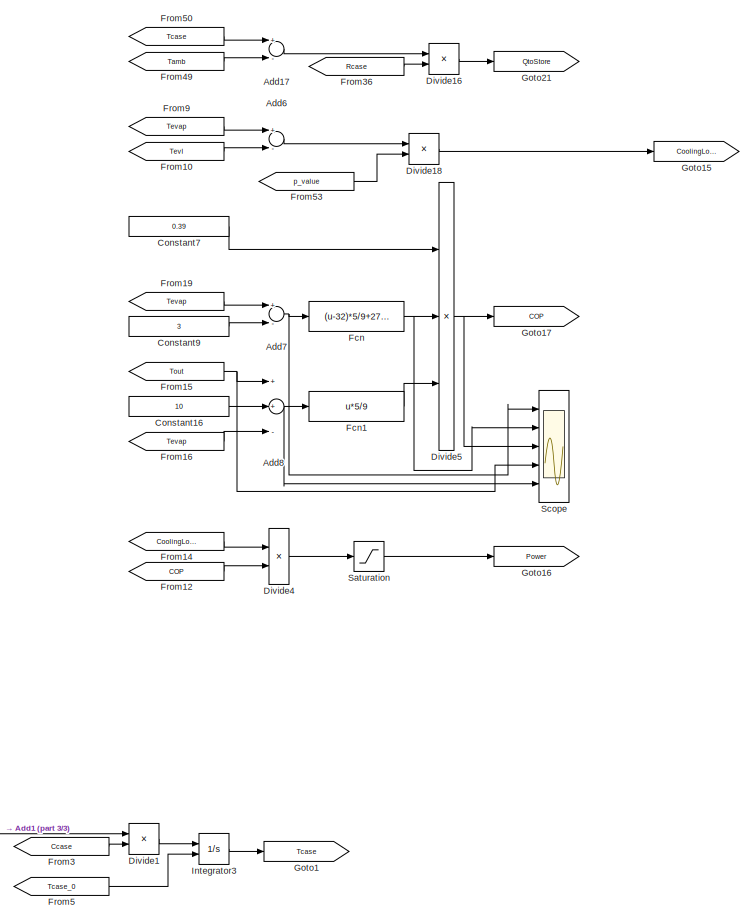
[diagram: Refrigeration/Walk-In/Diff Equations - part 2/3, middle right region]
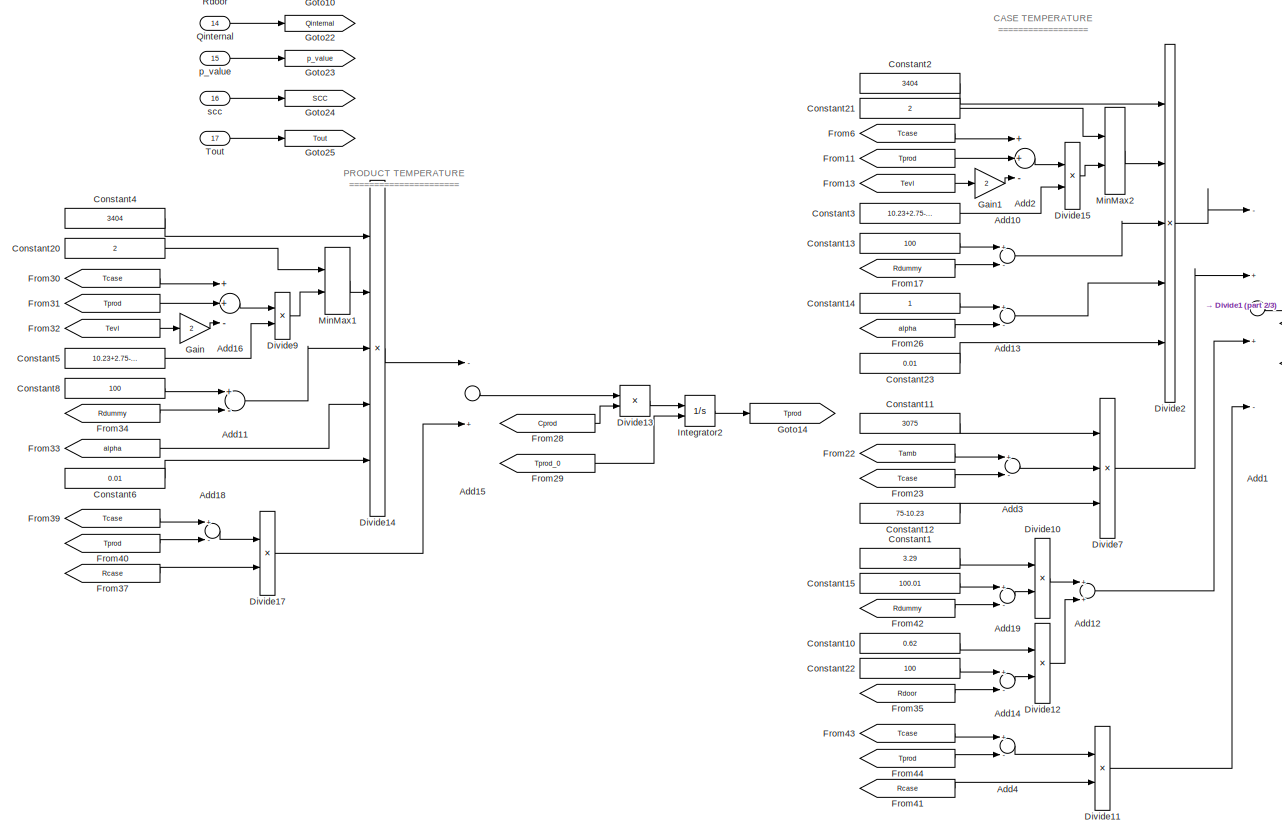
[diagram: Refrigeration/Walk-In/Diff Equations - part 3/3, bottom left region]
BLOCK [SubSystem] Refrigeration/Walk-In/Diff Equations
  Ports = [17, 8]
  RequestExecContextInheritance = off
BLOCK [Sum] Refrigeration/Walk-In/Diff Equations/Add1
  InputSameDT = off
  Inputs = -++-
  OutDataTypeStr = Inherit: Inherit via internal rule
  Ports = [4, 1]
  SaturateOnIntegerOverflow = off
BLOCK [Sum] Refrigeration/Walk-In/Diff Equations/Add10
  InputSameDT = off
  Inputs = +-
  OutDataTypeStr = Inherit: Inherit via internal rule
  Ports = [2, 1]
  SaturateOnIntegerOverflow = off
BLOCK [Sum] Refrigeration/Walk-In/Diff Equations/Add11
  InputSameDT = off
  Inputs = +-
  OutDataTypeStr = Inherit: Inherit via internal rule
  Ports = [2, 1]
  SaturateOnIntegerOverflow = off
BLOCK [Sum] Refrigeration/Walk-In/Diff Equations/Add12
  InputSameDT = off
  OutDataTypeStr = Inherit: Inherit via internal rule
  Ports = [2, 1]
  SaturateOnIntegerOverflow = off
BLOCK [Sum] Refrigeration/Walk-In/Diff Equations/Add13
  InputSameDT = off
  Inputs = +-
  OutDataTypeStr = Inherit: Inherit via internal rule
  Ports = [2, 1]
  SaturateOnIntegerOverflow = off
BLOCK [Sum] Refrigeration/Walk-In/Diff Equations/Add14
  InputSameDT = off
  Inputs = +-
  OutDataTypeStr = Inherit: Inherit via internal rule
  Ports = [2, 1]
  SaturateOnIntegerOverflow = off
BLOCK [Sum] Refrigeration/Walk-In/Diff Equations/Add15
  InputSameDT = off
  Inputs = -+
  OutDataTypeStr = Inherit: Inherit via internal rule
  Ports = [2, 1]
  SaturateOnIntegerOverflow = off
BLOCK [Sum] Refrigeration/Walk-In/Diff Equations/Add16
  InputSameDT = off
  Inputs = ++-
  OutDataTypeStr = Inherit: Inherit via internal rule
  Ports = [3, 1]
  SaturateOnIntegerOverflow = off
BLOCK [Sum] Refrigeration/Walk-In/Diff Equations/Add17
  InputSameDT = off
  Inputs = +-
  OutDataTypeStr = Inherit: Inherit via internal rule
  Ports = [2, 1]
  SaturateOnIntegerOverflow = off
BLOCK [Sum] Refrigeration/Walk-In/Diff Equations/Add18
  InputSameDT = off
  Inputs = +-
  OutDataTypeStr = Inherit: Inherit via internal rule
  Ports = [2, 1]
  SaturateOnIntegerOverflow = off
BLOCK [Sum] Refrigeration/Walk-In/Diff Equations/Add19
  InputSameDT = off
  Inputs = +-
  OutDataTypeStr = Inherit: Inherit via internal rule
  Ports = [2, 1]
  SaturateOnIntegerOverflow = off
BLOCK [Sum] Refrigeration/Walk-In/Diff Equations/Add2
  InputSameDT = off
  Inputs = ++-
  OutDataTypeStr = Inherit: Inherit via internal rule
  Ports = [3, 1]
  SaturateOnIntegerOverflow = off
BLOCK [Sum] Refrigeration/Walk-In/Diff Equations/Add3
  InputSameDT = off
  Inputs = +-
  OutDataTypeStr = Inherit: Inherit via internal rule
  Ports = [2, 1]
  SaturateOnIntegerOverflow = off
BLOCK [Sum] Refrigeration/Walk-In/Diff Equations/Add4
  InputSameDT = off
  Inputs = +-
  OutDataTypeStr = Inherit: Inherit via internal rule
  Ports = [2, 1]
  SaturateOnIntegerOverflow = off
BLOCK [Sum] Refrigeration/Walk-In/Diff Equations/Add5
  InputSameDT = off
  Inputs = +-
  OutDataTypeStr = Inherit: Inherit via internal rule
  Ports = [2, 1]
  SaturateOnIntegerOverflow = off
BLOCK [Sum] Refrigeration/Walk-In/Diff Equations/Add6
  InputSameDT = off
  Inputs = +-
  OutDataTypeStr = Inherit: Inherit via internal rule
  Ports = [2, 1]
  SaturateOnIntegerOverflow = off
BLOCK [Sum] Refrigeration/Walk-In/Diff Equations/Add7
  InputSameDT = off
  Inputs = +-
  OutDataTypeStr = Inherit: Inherit via internal rule
  Ports = [2, 1]
  SaturateOnIntegerOverflow = off
BLOCK [Sum] Refrigeration/Walk-In/Diff Equations/Add8
  InputSameDT = off
  Inputs = ++-
  OutDataTypeStr = Inherit: Inherit via internal rule
  Ports = [3, 1]
  SaturateOnIntegerOverflow = off
BLOCK [Sum] Refrigeration/Walk-In/Diff Equations/Add9
  InputSameDT = off
  Inputs = ++-
  OutDataTypeStr = Inherit: Inherit via internal rule
  Ports = [3, 1]
  SaturateOnIntegerOverflow = off
BLOCK [Outport] Refrigeration/Walk-In/Diff Equations/COP
  IconDisplay = Port number
  Port = 5
BLOCK [Inport] Refrigeration/Walk-In/Diff Equations/Ccase
  IconDisplay = Port number
  Port = 6
BLOCK [Inport] Refrigeration/Walk-In/Diff Equations/Cevap
  IconDisplay = Port number
  Port = 10
BLOCK [Constant] Refrigeration/Walk-In/Diff Equations/Constant1
  Value = 3.29
BLOCK [Constant] Refrigeration/Walk-In/Diff Equations/Constant10
  Value = 0.62
BLOCK [Constant] Refrigeration/Walk-In/Diff Equations/Constant11
  Value = 3075
BLOCK [Constant] Refrigeration/Walk-In/Diff Equations/Constant12
  Value = 75-10.23
BLOCK [Constant] Refrigeration/Walk-In/Diff Equations/Constant13
  Value = 100
BLOCK [Constant] Refrigeration/Walk-In/Diff Equations/Constant14
BLOCK [Constant] Refrigeration/Walk-In/Diff Equations/Constant15
  Value = 100.01
BLOCK [Constant] Refrigeration/Walk-In/Diff Equations/Constant16
  Value = 10
BLOCK [Constant] Refrigeration/Walk-In/Diff Equations/Constant17
  Value = 0.8
BLOCK [Constant] Refrigeration/Walk-In/Diff Equations/Constant18
  Value = 2
BLOCK [Constant] Refrigeration/Walk-In/Diff Equations/Constant19
  Value = 10.23+2.75-0.28
BLOCK [Constant] Refrigeration/Walk-In/Diff Equations/Constant2
  Value = 3404
BLOCK [Constant] Refrigeration/Walk-In/Diff Equations/Constant20
  Value = 2
BLOCK [Constant] Refrigeration/Walk-In/Diff Equations/Constant21
  Value = 2
BLOCK [Constant] Refrigeration/Walk-In/Diff Equations/Constant22
  Value = 100
BLOCK [Constant] Refrigeration/Walk-In/Diff Equations/Constant23
  Value = 0.01
BLOCK [Constant] Refrigeration/Walk-In/Diff Equations/Constant3
  Value = 10.23+2.75-2*0.28
BLOCK [Constant] Refrigeration/Walk-In/Diff Equations/Constant4
  Value = 3404
BLOCK [Constant] Refrigeration/Walk-In/Diff Equations/Constant5
  Value = 10.23+2.75-2*0.28
BLOCK [Constant] Refrigeration/Walk-In/Diff Equations/Constant6
  Value = 0.01
BLOCK [Constant] Refrigeration/Walk-In/Diff Equations/Constant7
  Value = 0.39
BLOCK [Constant] Refrigeration/Walk-In/Diff Equations/Constant8
  Value = 100
BLOCK [Constant] Refrigeration/Walk-In/Diff Equations/Constant9
  Value = 3
BLOCK [Outport] Refrigeration/Walk-In/Diff Equations/Coolingload
  IconDisplay = Port number
  Port = 4
BLOCK [Inport] Refrigeration/Walk-In/Diff Equations/Cprod
  IconDisplay = Port number
  Port = 3
BLOCK [Product] Refrigeration/Walk-In/Diff Equations/Divide1
  InputSameDT = off
  Inputs = */
  OutDataTypeStr = Inherit: Inherit via internal rule
  Ports = [2, 1]
  RndMeth = Floor
  SaturateOnIntegerOverflow = off
BLOCK [Product] Refrigeration/Walk-In/Diff Equations/Divide10
  InputSameDT = off
  Inputs = **
  OutDataTypeStr = Inherit: Inherit via internal rule
  Ports = [2, 1]
  RndMeth = Floor
  SaturateOnIntegerOverflow = off
BLOCK [Product] Refrigeration/Walk-In/Diff Equations/Divide11
  InputSameDT = off
  Inputs = */
  OutDataTypeStr = Inherit: Inherit via internal rule
  Ports = [2, 1]
  RndMeth = Floor
  SaturateOnIntegerOverflow = off
BLOCK [Product] Refrigeration/Walk-In/Diff Equations/Divide12
  InputSameDT = off
  Inputs = **
  OutDataTypeStr = Inherit: Inherit via internal rule
  Ports = [2, 1]
  RndMeth = Floor
  SaturateOnIntegerOverflow = off
BLOCK [Product] Refrigeration/Walk-In/Diff Equations/Divide13
  InputSameDT = off
  Inputs = */
  OutDataTypeStr = Inherit: Inherit via internal rule
  Ports = [2, 1]
  RndMeth = Floor
  SaturateOnIntegerOverflow = off
BLOCK [Product] Refrigeration/Walk-In/Diff Equations/Divide14
  InputSameDT = off
  Inputs = *****
  OutDataTypeStr = Inherit: Inherit via internal rule
  Ports = [5, 1]
  RndMeth = Floor
  SaturateOnIntegerOverflow = off
BLOCK [Product] Refrigeration/Walk-In/Diff Equations/Divide15
  InputSameDT = off
  Inputs = */
  OutDataTypeStr = Inherit: Inherit via internal rule
  Ports = [2, 1]
  RndMeth = Floor
  SaturateOnIntegerOverflow = off
BLOCK [Product] Refrigeration/Walk-In/Diff Equations/Divide16
  InputSameDT = off
  Inputs = */
  OutDataTypeStr = Inherit: Inherit via internal rule
  Ports = [2, 1]
  RndMeth = Floor
  SaturateOnIntegerOverflow = off
BLOCK [Product] Refrigeration/Walk-In/Diff Equations/Divide17
  InputSameDT = off
  Inputs = */
  OutDataTypeStr = Inherit: Inherit via internal rule
  Ports = [2, 1]
  RndMeth = Floor
  SaturateOnIntegerOverflow = off
BLOCK [Product] Refrigeration/Walk-In/Diff Equations/Divide18
  InputSameDT = off
  Inputs = **
  OutDataTypeStr = Inherit: Inherit via internal rule
  Ports = [2, 1]
  RndMeth = Floor
  SaturateOnIntegerOverflow = off
BLOCK [Product] Refrigeration/Walk-In/Diff Equations/Divide2
  InputSameDT = off
  Inputs = *****
  OutDataTypeStr = Inherit: Inherit via internal rule
  Ports = [5, 1]
  RndMeth = Floor
  SaturateOnIntegerOverflow = off
BLOCK [Product] Refrigeration/Walk-In/Diff Equations/Divide3
  InputSameDT = off
  Inputs = */
  OutDataTypeStr = Inherit: Inherit via internal rule
  Ports = [2, 1]
  RndMeth = Floor
  SaturateOnIntegerOverflow = off
BLOCK [Product] Refrigeration/Walk-In/Diff Equations/Divide4
  InputSameDT = off
  Inputs = */
  OutDataTypeStr = Inherit: Inherit via internal rule
  Ports = [2, 1]
  RndMeth = Floor
  SaturateOnIntegerOverflow = off
BLOCK [Product] Refrigeration/Walk-In/Diff Equations/Divide5
  InputSameDT = off
  Inputs = **/
  OutDataTypeStr = Inherit: Inherit via internal rule
  Ports = [3, 1]
  RndMeth = Floor
  SaturateOnIntegerOverflow = off
BLOCK [Product] Refrigeration/Walk-In/Diff Equations/Divide6
  InputSameDT = off
  Inputs = ***
  OutDataTypeStr = Inherit: Inherit via internal rule
  Ports = [3, 1]
  RndMeth = Floor
  SaturateOnIntegerOverflow = off
BLOCK [Product] Refrigeration/Walk-In/Diff Equations/Divide7
  InputSameDT = off
  Inputs = **/
  OutDataTypeStr = Inherit: Inherit via internal rule
  Ports = [3, 1]
  RndMeth = Floor
  SaturateOnIntegerOverflow = off
BLOCK [Product] Refrigeration/Walk-In/Diff Equations/Divide8
  InputSameDT = off
  Inputs = */
  OutDataTypeStr = Inherit: Inherit via internal rule
  Ports = [2, 1]
  RndMeth = Floor
  SaturateOnIntegerOverflow = off
BLOCK [Product] Refrigeration/Walk-In/Diff Equations/Divide9
  InputSameDT = off
  Inputs = */
  OutDataTypeStr = Inherit: Inherit via internal rule
  Ports = [2, 1]
  RndMeth = Floor
  SaturateOnIntegerOverflow = off
BLOCK [Fcn] Refrigeration/Walk-In/Diff Equations/Fcn
  Expr = (u-32)*5/9+273.15
BLOCK [Fcn] Refrigeration/Walk-In/Diff Equations/Fcn1
  Expr = u*5/9
BLOCK [From] Refrigeration/Walk-In/Diff Equations/From1
  GotoTag = Cevap
BLOCK [From] Refrigeration/Walk-In/Diff Equations/From10
  GotoTag = Tevl
BLOCK [From] Refrigeration/Walk-In/Diff Equations/From11
  GotoTag = Tprod
BLOCK [From] Refrigeration/Walk-In/Diff Equations/From12
  GotoTag = COP
BLOCK [From] Refrigeration/Walk-In/Diff Equations/From13
  GotoTag = Tevl
BLOCK [From] Refrigeration/Walk-In/Diff Equations/From14
  GotoTag = CoolingLoad
BLOCK [From] Refrigeration/Walk-In/Diff Equations/From15
  GotoTag = Tout
BLOCK [From] Refrigeration/Walk-In/Diff Equations/From16
  GotoTag = Tevap
BLOCK [From] Refrigeration/Walk-In/Diff Equations/From17
  GotoTag = Rdummy
BLOCK [From] Refrigeration/Walk-In/Diff Equations/From18
  GotoTag = Tevap
BLOCK [From] Refrigeration/Walk-In/Diff Equations/From19
  GotoTag = Tevap
BLOCK [From] Refrigeration/Walk-In/Diff Equations/From2
  GotoTag = CoolingLoad
BLOCK [From] Refrigeration/Walk-In/Diff Equations/From20
  GotoTag = COP
BLOCK [From] Refrigeration/Walk-In/Diff Equations/From21
  GotoTag = Tcase
BLOCK [From] Refrigeration/Walk-In/Diff Equations/From22
  GotoTag = Tamb
BLOCK [From] Refrigeration/Walk-In/Diff Equations/From23
  GotoTag = Tcase
BLOCK [From] Refrigeration/Walk-In/Diff Equations/From24
  GotoTag = Power
BLOCK [From] Refrigeration/Walk-In/Diff Equations/From25
  GotoTag = Tprod
BLOCK [From] Refrigeration/Walk-In/Diff Equations/From26
  GotoTag = alpha
BLOCK [From] Refrigeration/Walk-In/Diff Equations/From27
  GotoTag = QtoEvapAir
BLOCK [From] Refrigeration/Walk-In/Diff Equations/From28
  GotoTag = Cprod
BLOCK [From] Refrigeration/Walk-In/Diff Equations/From29
  GotoTag = Tprod_0
BLOCK [From] Refrigeration/Walk-In/Diff Equations/From3
  GotoTag = Ccase
BLOCK [From] Refrigeration/Walk-In/Diff Equations/From30
  GotoTag = Tcase
BLOCK [From] Refrigeration/Walk-In/Diff Equations/From31
  GotoTag = Tprod
BLOCK [From] Refrigeration/Walk-In/Diff Equations/From32
  GotoTag = Tevl
BLOCK [From] Refrigeration/Walk-In/Diff Equations/From33
  GotoTag = alpha
BLOCK [From] Refrigeration/Walk-In/Diff Equations/From34
  GotoTag = Rdummy
BLOCK [From] Refrigeration/Walk-In/Diff Equations/From35
  GotoTag = Rdoor
BLOCK [From] Refrigeration/Walk-In/Diff Equations/From36
  GotoTag = Rcase
BLOCK [From] Refrigeration/Walk-In/Diff Equations/From37
  GotoTag = Rcase
BLOCK [From] Refrigeration/Walk-In/Diff Equations/From38
  GotoTag = Qinternal
BLOCK [From] Refrigeration/Walk-In/Diff Equations/From39
  GotoTag = Tcase
BLOCK [From] Refrigeration/Walk-In/Diff Equations/From4
  GotoTag = Tevap_0
BLOCK [From] Refrigeration/Walk-In/Diff Equations/From40
  GotoTag = Tprod
BLOCK [From] Refrigeration/Walk-In/Diff Equations/From41
  GotoTag = Rcase
BLOCK [From] Refrigeration/Walk-In/Diff Equations/From42
  GotoTag = Rdummy
BLOCK [From] Refrigeration/Walk-In/Diff Equations/From43
  GotoTag = Tcase
BLOCK [From] Refrigeration/Walk-In/Diff Equations/From44
  GotoTag = Tprod
BLOCK [From] Refrigeration/Walk-In/Diff Equations/From45
  GotoTag = RateLoad
BLOCK [From] Refrigeration/Walk-In/Diff Equations/From46
  GotoTag = Tprod
BLOCK [From] Refrigeration/Walk-In/Diff Equations/From47
  GotoTag = Tevl
BLOCK [From] Refrigeration/Walk-In/Diff Equations/From48
  GotoTag = Tcase
BLOCK [From] Refrigeration/Walk-In/Diff Equations/From49
  GotoTag = Tamb
BLOCK [From] Refrigeration/Walk-In/Diff Equations/From5
  GotoTag = Tcase_0
BLOCK [From] Refrigeration/Walk-In/Diff Equations/From50
  GotoTag = Tcase
BLOCK [From] Refrigeration/Walk-In/Diff Equations/From51
  GotoTag = QtoStore
BLOCK [From] Refrigeration/Walk-In/Diff Equations/From52
  GotoTag = SCC
BLOCK [From] Refrigeration/Walk-In/Diff Equations/From53
  GotoTag = p_value
BLOCK [From] Refrigeration/Walk-In/Diff Equations/From6
  GotoTag = Tcase
BLOCK [From] Refrigeration/Walk-In/Diff Equations/From7
  GotoTag = QtoEvapAir
BLOCK [From] Refrigeration/Walk-In/Diff Equations/From8
  GotoTag = CoolingLoad
BLOCK [From] Refrigeration/Walk-In/Diff Equations/From9
  GotoTag = Tevap
BLOCK [Gain] Refrigeration/Walk-In/Diff Equations/Gain
  Gain = 2
  OutDataTypeStr = Inherit: Inherit via internal rule
  ParamDataTypeStr = Inherit: Inherit via internal rule
  SaturateOnIntegerOverflow = off
BLOCK [Gain] Refrigeration/Walk-In/Diff Equations/Gain1
  Gain = 2
  OutDataTypeStr = Inherit: Inherit via internal rule
  ParamDataTypeStr = Inherit: Inherit via internal rule
  SaturateOnIntegerOverflow = off
BLOCK [Gain] Refrigeration/Walk-In/Diff Equations/Gain3
  Gain = 2
  OutDataTypeStr = Inherit: Inherit via internal rule
  ParamDataTypeStr = Inherit: Inherit via internal rule
  SaturateOnIntegerOverflow = off
BLOCK [Goto] Refrigeration/Walk-In/Diff Equations/Goto1
  GotoTag = Tcase
BLOCK [Goto] Refrigeration/Walk-In/Diff Equations/Goto10
  GotoTag = Rdoor
BLOCK [Goto] Refrigeration/Walk-In/Diff Equations/Goto11
  GotoTag = Ccase
BLOCK [Goto] Refrigeration/Walk-In/Diff Equations/Goto12
  GotoTag = Tprod_0
BLOCK [Goto] Refrigeration/Walk-In/Diff Equations/Goto13
  GotoTag = Tcase_0
BLOCK [Goto] Refrigeration/Walk-In/Diff Equations/Goto14
  GotoTag = Tprod
BLOCK [Goto] Refrigeration/Walk-In/Diff Equations/Goto15
  GotoTag = CoolingLoad
BLOCK [Goto] Refrigeration/Walk-In/Diff Equations/Goto16
  GotoTag = Power
BLOCK [Goto] Refrigeration/Walk-In/Diff Equations/Goto17
  GotoTag = COP
BLOCK [Goto] Refrigeration/Walk-In/Diff Equations/Goto18
  GotoTag = QtoEvapAir
BLOCK [Goto] Refrigeration/Walk-In/Diff Equations/Goto19
  GotoTag = Cevap
BLOCK [Goto] Refrigeration/Walk-In/Diff Equations/Goto2
  GotoTag = Tevap
BLOCK [Goto] Refrigeration/Walk-In/Diff Equations/Goto20
  GotoTag = RateLoad
BLOCK [Goto] Refrigeration/Walk-In/Diff Equations/Goto21
  GotoTag = QtoStore
BLOCK [Goto] Refrigeration/Walk-In/Diff Equations/Goto22
  GotoTag = Qinternal
BLOCK [Goto] Refrigeration/Walk-In/Diff Equations/Goto23
  GotoTag = p_value
BLOCK [Goto] Refrigeration/Walk-In/Diff Equations/Goto24
  GotoTag = SCC
BLOCK [Goto] Refrigeration/Walk-In/Diff Equations/Goto25
  GotoTag = Tout
BLOCK [Goto] Refrigeration/Walk-In/Diff Equations/Goto3
  GotoTag = Tevap_0
BLOCK [Goto] Refrigeration/Walk-In/Diff Equations/Goto4
  GotoTag = Tevl
BLOCK [Goto] Refrigeration/Walk-In/Diff Equations/Goto5
  GotoTag = alpha
BLOCK [Goto] Refrigeration/Walk-In/Diff Equations/Goto6
  GotoTag = Rcase
BLOCK [Goto] Refrigeration/Walk-In/Diff Equations/Goto7
  GotoTag = Rdummy
BLOCK [Goto] Refrigeration/Walk-In/Diff Equations/Goto8
  GotoTag = Cprod
BLOCK [Goto] Refrigeration/Walk-In/Diff Equations/Goto9
  GotoTag = Tamb
BLOCK [Integrator] Refrigeration/Walk-In/Diff Equations/Integrator1
  InitialConditionSource = external
  Ports = [2, 1]
BLOCK [Integrator] Refrigeration/Walk-In/Diff Equations/Integrator2
  InitialConditionSource = external
  Ports = [2, 1]
BLOCK [Integrator] Refrigeration/Walk-In/Diff Equations/Integrator3
  InitialConditionSource = external
  Ports = [2, 1]
BLOCK [MinMax] Refrigeration/Walk-In/Diff Equations/MinMax
  InputSameDT = off
  Inputs = 2
  Ports = [2, 1]
  SaturateOnIntegerOverflow = off
BLOCK [MinMax] Refrigeration/Walk-In/Diff Equations/MinMax1
  InputSameDT = off
  Inputs = 2
  Ports = [2, 1]
  SaturateOnIntegerOverflow = off
BLOCK [MinMax] Refrigeration/Walk-In/Diff Equations/MinMax2
  InputSameDT = off
  Inputs = 2
  Ports = [2, 1]
  SaturateOnIntegerOverflow = off
BLOCK [Outport] Refrigeration/Walk-In/Diff Equations/Power
  IconDisplay = Port number
  Port = 6
BLOCK [Inport] Refrigeration/Walk-In/Diff Equations/Qinternal
  IconDisplay = Port number
  Port = 14
BLOCK [Outport] Refrigeration/Walk-In/Diff Equations/QtoEvapAir
  IconDisplay = Port number
  Port = 7
BLOCK [Outport] Refrigeration/Walk-In/Diff Equations/QtoStore
  IconDisplay = Port number
  Port = 8
BLOCK [Inport] Refrigeration/Walk-In/Diff Equations/RateLoad
  IconDisplay = Port number
  Port = 11
BLOCK [Inport] Refrigeration/Walk-In/Diff Equations/Rcase
  IconDisplay = Port number
  Port = 2
BLOCK [Inport] Refrigeration/Walk-In/Diff Equations/Rdoor
  IconDisplay = Port number
  Port = 13
BLOCK [Inport] Refrigeration/Walk-In/Diff Equations/Rdummy
  IconDisplay = Port number
  Port = 12
BLOCK [Saturate] Refrigeration/Walk-In/Diff Equations/Saturation
  InputPortMap = u0
  LowerLimit = 0
  Ports = [1, 1]
  UpperLimit = inf
BLOCK [Scope] Refrigeration/Walk-In/Diff Equations/Scope
  Floating = off
  LegendLocations = 0.84705     0.92291     0.10509    0.025381\n0.85509     0.73763    0.097055    0.025381\n0.82296     0.55108     0.12918    0.025381\n0.80689     0.36453     0.12115    0.025381\n0.80689     0.17798     0.10509    0.025381
  LimitDataPoints = off
  NumInputPorts = 5
  Ports = [5]
  SaveName = ScopeData4
  ShowLegends = on
  TimeRange = 90000
  YMax = 10~5~5~5~5
  YMin = -4~-5~-5~-5~-5
BLOCK [Inport] Refrigeration/Walk-In/Diff Equations/Tamb
  IconDisplay = Port number
  Port = 4
BLOCK [Outport] Refrigeration/Walk-In/Diff Equations/Tcase
  IconDisplay = Port number
  Port = 2
BLOCK [Inport] Refrigeration/Walk-In/Diff Equations/Tcase_0
  IconDisplay = Port number
  Port = 8
BLOCK [Terminator] Refrigeration/Walk-In/Diff Equations/Terminator
BLOCK [Terminator] Refrigeration/Walk-In/Diff Equations/Terminator1
BLOCK [Outport] Refrigeration/Walk-In/Diff Equations/Tevap
  IconDisplay = Port number
  Port = 3
BLOCK [Inport] Refrigeration/Walk-In/Diff Equations/Tevap_0
  IconDisplay = Port number
  Port = 9
BLOCK [Inport] Refrigeration/Walk-In/Diff Equations/Tevl
  IconDisplay = Port number
BLOCK [Inport] Refrigeration/Walk-In/Diff Equations/Tout
  IconDisplay = Port number
  Port = 17
BLOCK [Outport] Refrigeration/Walk-In/Diff Equations/Tprod
  IconDisplay = Port number
BLOCK [Inport] Refrigeration/Walk-In/Diff Equations/Tprod_0
  IconDisplay = Port number
  Port = 7
BLOCK [Inport] Refrigeration/Walk-In/Diff Equations/alpha
  IconDisplay = Port number
  Port = 5
BLOCK [Inport] Refrigeration/Walk-In/Diff Equations/p_value
  IconDisplay = Port number
  Port = 15
BLOCK [Inport] Refrigeration/Walk-In/Diff Equations/scc
  IconDisplay = Port number
  Port = 16
BLOCK [Product] Refrigeration/Walk-In/Divide
  InputSameDT = off
  Inputs = **
  OutDataTypeStr = Inherit: Inherit via internal rule
  Ports = [2, 1]
  RndMeth = Floor
  SaturateOnIntegerOverflow = off
BLOCK [Product] Refrigeration/Walk-In/Divide1
  InputSameDT = off
  Inputs = **
  OutDataTypeStr = Inherit: Inherit via internal rule
  Ports = [2, 1]
  RndMeth = Floor
  SaturateOnIntegerOverflow = off
BLOCK [Product] Refrigeration/Walk-In/Divide2
  InputSameDT = off
  Inputs = **
  OutDataTypeStr = Inherit: Inherit via internal rule
  Ports = [2, 1]
  RndMeth = Floor
  SaturateOnIntegerOverflow = off
BLOCK [Product] Refrigeration/Walk-In/Divide3
  InputSameDT = off
  Inputs = **
  OutDataTypeStr = Inherit: Inherit via internal rule
  Ports = [2, 1]
  RndMeth = Floor
  SaturateOnIntegerOverflow = off
BLOCK [Fcn] Refrigeration/Walk-In/Fcn
  Expr = u*9/5+32
BLOCK [Fcn] Refrigeration/Walk-In/Fcn1
  Expr = u*9/5+32
BLOCK [Fcn] Refrigeration/Walk-In/Fcn2
  Expr = u*9/5+32
BLOCK [Fcn] Refrigeration/Walk-In/Fcn3
  Expr = (u-32)*5/9
BLOCK [Fcn] Refrigeration/Walk-In/Fcn4
  Expr = (u-32)*5/9
BLOCK [Fcn] Refrigeration/Walk-In/Fcn5
  Expr = (u-32)*5/9
BLOCK [From] Refrigeration/Walk-In/From1
  GotoTag = Tprod
BLOCK [From] Refrigeration/Walk-In/From10
  GotoTag = Cevap
BLOCK [From] Refrigeration/Walk-In/From11
  GotoTag = RatedLoad
BLOCK [From] Refrigeration/Walk-In/From12
  GotoTag = Tprod
BLOCK [From] Refrigeration/Walk-In/From13
  GotoTag = Tcase
BLOCK [From] Refrigeration/Walk-In/From14
  GotoTag = Tevap
BLOCK [From] Refrigeration/Walk-In/From15
  GotoTag = Rdummy
BLOCK [From] Refrigeration/Walk-In/From16
  GotoTag = Coolingload
BLOCK [From] Refrigeration/Walk-In/From17
  GotoTag = COP
BLOCK [From] Refrigeration/Walk-In/From18
  GotoTag = Power
BLOCK [From] Refrigeration/Walk-In/From19
  GotoTag = Ccase
BLOCK [From] Refrigeration/Walk-In/From2
  GotoTag = Tcase
BLOCK [From] Refrigeration/Walk-In/From20
  GotoTag = Tevl
BLOCK [From] Refrigeration/Walk-In/From21
  GotoTag = Tprod_0
BLOCK [From] Refrigeration/Walk-In/From22
  GotoTag = Tcase_0
BLOCK [From] Refrigeration/Walk-In/From23
  GotoTag = Rdoor
BLOCK [From] Refrigeration/Walk-In/From24
  GotoTag = QtoStore
BLOCK [From] Refrigeration/Walk-In/From25
  GotoTag = QtoEvapAir
BLOCK [From] Refrigeration/Walk-In/From26
  GotoTag = Qinternal
BLOCK [From] Refrigeration/Walk-In/From27
  GotoTag = Num_cases
BLOCK [From] Refrigeration/Walk-In/From28
  GotoTag = Num_cases
BLOCK [From] Refrigeration/Walk-In/From29
  GotoTag = Num_cases
BLOCK [From] Refrigeration/Walk-In/From3
  GotoTag = Tevap
BLOCK [From] Refrigeration/Walk-In/From30
  GotoTag = Num_cases
BLOCK [From] Refrigeration/Walk-In/From31
  GotoTag = Qfan
BLOCK [From] Refrigeration/Walk-In/From32
  GotoTag = Qlights
BLOCK [From] Refrigeration/Walk-In/From33
  GotoTag = SCC
BLOCK [From] Refrigeration/Walk-In/From34
  GotoTag = p_value
BLOCK [From] Refrigeration/Walk-In/From35
  GotoTag = SCC
BLOCK [From] Refrigeration/Walk-In/From36
  GotoTag = Tout
BLOCK [From] Refrigeration/Walk-In/From37
  GotoTag = LHR
BLOCK [From] Refrigeration/Walk-In/From4
  GotoTag = Tevl
BLOCK [From] Refrigeration/Walk-In/From5
  GotoTag = Tevap_0
BLOCK [From] Refrigeration/Walk-In/From52
  GotoTag = OperationalCapacity
BLOCK [From] Refrigeration/Walk-In/From6
  GotoTag = alpha
BLOCK [From] Refrigeration/Walk-In/From7
  GotoTag = Rcase
BLOCK [From] Refrigeration/Walk-In/From8
  GotoTag = Cprod
BLOCK [From] Refrigeration/Walk-In/From9
  GotoTag = Tamb
BLOCK [Goto] Refrigeration/Walk-In/Goto
  GotoTag = Tamb
BLOCK [Goto] Refrigeration/Walk-In/Goto1
  GotoTag = Rcase
BLOCK [Goto] Refrigeration/Walk-In/Goto10
  GotoTag = Num_cases
BLOCK [Goto] Refrigeration/Walk-In/Goto11
  GotoTag = Tprod
BLOCK [Goto] Refrigeration/Walk-In/Goto12
  GotoTag = Tcase
BLOCK [Goto] Refrigeration/Walk-In/Goto13
  GotoTag = COP
BLOCK [Goto] Refrigeration/Walk-In/Goto14
  GotoTag = Power
BLOCK [Goto] Refrigeration/Walk-In/Goto15
  GotoTag = QtoEvapAir
BLOCK [Goto] Refrigeration/Walk-In/Goto16
  GotoTag = Cevap
BLOCK [Goto] Refrigeration/Walk-In/Goto17
  GotoTag = Qlights
BLOCK [Goto] Refrigeration/Walk-In/Goto18
  GotoTag = QtoStore
BLOCK [Goto] Refrigeration/Walk-In/Goto19
  GotoTag = Qinternal
BLOCK [Goto] Refrigeration/Walk-In/Goto2
  GotoTag = Tevl
BLOCK [Goto] Refrigeration/Walk-In/Goto20
  GotoTag = OperationalCapacity
BLOCK [Goto] Refrigeration/Walk-In/Goto21
  GotoTag = Tevap_0
BLOCK [Goto] Refrigeration/Walk-In/Goto22
  GotoTag = Qfan
BLOCK [Goto] Refrigeration/Walk-In/Goto23
  GotoTag = Tprod_0
BLOCK [Goto] Refrigeration/Walk-In/Goto24
  GotoTag = RatedLoad
BLOCK [Goto] Refrigeration/Walk-In/Goto25
  GotoTag = SCC
BLOCK [Goto] Refrigeration/Walk-In/Goto26
  GotoTag = LHR
BLOCK [Goto] Refrigeration/Walk-In/Goto27
  GotoTag = p_value
BLOCK [Goto] Refrigeration/Walk-In/Goto28
  GotoTag = alpha
BLOCK [Goto] Refrigeration/Walk-In/Goto29
  GotoTag = Tcase_0
BLOCK [Goto] Refrigeration/Walk-In/Goto3
  GotoTag = Coolingload
BLOCK [Goto] Refrigeration/Walk-In/Goto4
  GotoTag = Tevap
BLOCK [Goto] Refrigeration/Walk-In/Goto5
  GotoTag = Rdummy
BLOCK [Goto] Refrigeration/Walk-In/Goto6
  GotoTag = Ccase
BLOCK [Goto] Refrigeration/Walk-In/Goto7
  GotoTag = Cprod
BLOCK [Goto] Refrigeration/Walk-In/Goto8
  GotoTag = Tout
BLOCK [Goto] Refrigeration/Walk-In/Goto9
  GotoTag = Rdoor
BLOCK [Mux] Refrigeration/Walk-In/Mux
  DisplayOption = bar
  Ports = [4, 1]
BLOCK [Inport] Refrigeration/Walk-In/Num_cases
  IconDisplay = Port number
  Port = 6
BLOCK [Outport] Refrigeration/Walk-In/Power
  IconDisplay = Port number
  Port = 6
BLOCK [Outport] Refrigeration/Walk-In/QtoEvapAir
  IconDisplay = Port number
  Port = 7
BLOCK [Outport] Refrigeration/Walk-In/QtoStore
  IconDisplay = Port number
  Port = 8
BLOCK [Inport] Refrigeration/Walk-In/Rdoor
  IconDisplay = Port number
  Port = 5
BLOCK [Inport] Refrigeration/Walk-In/Rdummy
  IconDisplay = Port number
  Port = 4
BLOCK [Outport] Refrigeration/Walk-In/SCC
  IconDisplay = Port number
  Port = 9
BLOCK [Scope] Refrigeration/Walk-In/Scope
  Floating = off
  LimitDataPoints = off
  NumInputPorts = 1
  Ports = [1]
  ShowLegends = on
  TimeRange = 90000
  YMax = 10
  YMin = -4
BLOCK [Inport] Refrigeration/Walk-In/Tamb
  IconDisplay = Port number
BLOCK [Outport] Refrigeration/Walk-In/Tcase
  IconDisplay = Port number
  Port = 2
BLOCK [Constant] Refrigeration/Walk-In/Tcase Initial1
  Value = Tevap_0_param
BLOCK [Constant] Refrigeration/Walk-In/Tcase Initial3
  Value = Tprod_0_param
BLOCK [Constant] Refrigeration/Walk-In/Tcase Initial4
  Value = Tcase_0_param
BLOCK [Terminator] Refrigeration/Walk-In/Terminator1
BLOCK [Terminator] Refrigeration/Walk-In/Terminator2
BLOCK [Outport] Refrigeration/Walk-In/Tevap
  IconDisplay = Port number
  Port = 3
BLOCK [Inport] Refrigeration/Walk-In/Tevl
  IconDisplay = Port number
  Port = 2
BLOCK [Inport] Refrigeration/Walk-In/Tout
  IconDisplay = Port number
  Port = 3
BLOCK [Outport] Refrigeration/Walk-In/Tprod
  IconDisplay = Port number
BLOCK [SubSystem] Utilities
  Ports = []
  RequestExecContextInheritance = off
BLOCK [S-Function] Utilities/Feed Constant
  EnableBusSupport = off
  FunctionName = feedconstant
  Parameters = filename,timestep,numinput
  Ports = [0, 1]
BLOCK [S-Function] Utilities/Feed File
  EnableBusSupport = off
  FunctionName = feedinput
  Parameters = filename,timestep,feedstep
  Ports = [0, 1]
BLOCK [S-Function] Utilities/Write Output
  EnableBusSupport = off
  FunctionName = writeoutput
  Parameters = filename,timestep
  Ports = [1]
BLOCK [S-Function] Utilities/Write Result
  EnableBusSupport = off
  FunctionName = writeresult
  Parameters = filename,timestep
  Ports = [1]
BLOCK [S-Function] mlep Cosimulation
  EnableBusSupport = off
  FunctionName = mlepCosim
  Parameters = progname,idf,weather,timeout,step,numinput,numoutput,bcvtbpath
  Ports = [1, 3]
ANNOTATION Refrigeration/Vertical Closed Transparent Case: INPUTS =======
ANNOTATION Refrigeration/Vertical Closed Transparent Case: OUTPUTS =========
ANNOTATION Refrigeration/Vertical Closed Transparent Case: PARAMETERS ============
ANNOTATION Refrigeration/Vertical Closed Transparent Case/Diff Equations: CASE TEMPERATURE ==================
ANNOTATION Refrigeration/Vertical Closed Transparent Case/Diff Equations: HEAT TO EVAP AIR ================
ANNOTATION Refrigeration/Vertical Closed Transparent Case/Diff Equations: HEAT TO STORE ==============
ANNOTATION Refrigeration/Vertical Closed Transparent Case/Diff Equations: INPUTS =======
ANNOTATION Refrigeration/Vertical Closed Transparent Case/Diff Equations: OUTPUTS =========
ANNOTATION Refrigeration/Vertical Closed Transparent Case/Diff Equations: PRODUCT TEMPERATURE ======================
ANNOTATION Refrigeration/Walk-In: INPUTS =======
ANNOTATION Refrigeration/Walk-In: OUTPUTS =========
ANNOTATION Refrigeration/Walk-In: PARAMETERS ============
ANNOTATION Refrigeration/Walk-In/Diff Equations: CASE TEMPERATURE ==================
ANNOTATION Refrigeration/Walk-In/Diff Equations: HEAT TO EVAP AIR ================
ANNOTATION Refrigeration/Walk-In/Diff Equations: INPUTS =======
ANNOTATION Refrigeration/Walk-In/Diff Equations: OUTPUTS =========
ANNOTATION Refrigeration/Walk-In/Diff Equations: PRODUCT TEMPERATURE ======================
LINE Refrigeration/Vertical Closed Transparent Case/Constant10:1 -> Refrigeration/Vertical Closed Transparent Case/Goto25:1
LINE Refrigeration/Vertical Closed Transparent Case/Constant11:1 -> Refrigeration/Vertical Closed Transparent Case/Goto26:1
LINE Refrigeration/Vertical Closed Transparent Case/Constant12:1 -> Refrigeration/Vertical Closed Transparent Case/Goto28:1
LINE Refrigeration/Vertical Closed Transparent Case/Constant13:1 -> Refrigeration/Vertical Closed Transparent Case/Goto18:1
LINE Refrigeration/Vertical Closed Transparent Case/Constant1:1 -> Refrigeration/Vertical Closed Transparent Case/Goto7:1
LINE Refrigeration/Vertical Closed Transparent Case/Constant2:1 -> Refrigeration/Vertical Closed Transparent Case/Goto1:1
LINE Refrigeration/Vertical Closed Transparent Case/Constant3:1 -> Refrigeration/Vertical Closed Transparent Case/Goto6:1
LINE Refrigeration/Vertical Closed Transparent Case/Constant4:1 -> Refrigeration/Vertical Closed Transparent Case/Goto9:1
LINE Refrigeration/Vertical Closed Transparent Case/Constant5:1 -> Refrigeration/Vertical Closed Transparent Case/Goto10:1
LINE Refrigeration/Vertical Closed Transparent Case/Constant6:1 -> Refrigeration/Vertical Closed Transparent Case/Goto20:1
LINE Refrigeration/Vertical Closed Transparent Case/Constant7:1 -> Refrigeration/Vertical Closed Transparent Case/Goto16:1
LINE Refrigeration/Vertical Closed Transparent Case/Constant8:1 -> Refrigeration/Vertical Closed Transparent Case/Goto22:1
LINE Refrigeration/Vertical Closed Transparent Case/Constant9:1 -> Refrigeration/Vertical Closed Transparent Case/Goto24:1
LINE Refrigeration/Vertical Closed Transparent Case/Diff Equations/Add10:1 -> Refrigeration/Vertical Closed Transparent Case/Diff Equations/Divide2:4
LINE Refrigeration/Vertical Closed Transparent Case/Diff Equations/Add11:1 -> Refrigeration/Vertical Closed Transparent Case/Diff Equations/Divide12:1
LINE Refrigeration/Vertical Closed Transparent Case/Diff Equations/Add13:1 -> Refrigeration/Vertical Closed Transparent Case/Diff Equations/Divide7:4
LINE Refrigeration/Vertical Closed Transparent Case/Diff Equations/Add15:1 -> Refrigeration/Vertical Closed Transparent Case/Diff Equations/Divide13:1
LINE Refrigeration/Vertical Closed Transparent Case/Diff Equations/Add16:1 -> Refrigeration/Vertical Closed Transparent Case/Diff Equations/Divide14:2
LINE Refrigeration/Vertical Closed Transparent Case/Diff Equations/Add17:1 -> Refrigeration/Vertical Closed Transparent Case/Diff Equations/Divide15:2
LINE Refrigeration/Vertical Closed Transparent Case/Diff Equations/Add18:1 -> Refrigeration/Vertical Closed Transparent Case/Diff Equations/Divide17:1
LINE Refrigeration/Vertical Closed Transparent Case/Diff Equations/Add19:1 -> Refrigeration/Vertical Closed Transparent Case/Diff Equations/Divide10:2
LINE Refrigeration/Vertical Closed Transparent Case/Diff Equations/Add1:1 -> Refrigeration/Vertical Closed Transparent Case/Diff Equations/Divide1:1
LINE Refrigeration/Vertical Closed Transparent Case/Diff Equations/Add2:1 -> Refrigeration/Vertical Closed Transparent Case/Diff Equations/Divide2:2
LINE Refrigeration/Vertical Closed Transparent Case/Diff Equations/Add3:1 -> Refrigeration/Vertical Closed Transparent Case/Diff Equations/Divide7:2
LINE Refrigeration/Vertical Closed Transparent Case/Diff Equations/Add4:1 -> Refrigeration/Vertical Closed Transparent Case/Diff Equations/Divide11:1
LINE Refrigeration/Vertical Closed Transparent Case/Diff Equations/Add5:1 -> Refrigeration/Vertical Closed Transparent Case/Diff Equations/Divide3:1
LINE Refrigeration/Vertical Closed Transparent Case/Diff Equations/Add6:1 -> Refrigeration/Vertical Closed Transparent Case/Diff Equations/Divide9:1
LINE Refrigeration/Vertical Closed Transparent Case/Diff Equations/Add7:1 -> Refrigeration/Vertical Closed Transparent Case/Diff Equations/Fcn:1
LINE Refrigeration/Vertical Closed Transparent Case/Diff Equations/Add8:1 -> Refrigeration/Vertical Closed Transparent Case/Diff Equations/Fcn1:1
LINE Refrigeration/Vertical Closed Transparent Case/Diff Equations/Add9:1 -> Refrigeration/Vertical Closed Transparent Case/Diff Equations/Divide8:1
LINE Refrigeration/Vertical Closed Transparent Case/Diff Equations/Ccase:1 -> Refrigeration/Vertical Closed Transparent Case/Diff Equations/Goto11:1
LINE Refrigeration/Vertical Closed Transparent Case/Diff Equations/Cevap:1 -> Refrigeration/Vertical Closed Transparent Case/Diff Equations/Goto19:1
LINE Refrigeration/Vertical Closed Transparent Case/Diff Equations/Constant10:1 -> Refrigeration/Vertical Closed Transparent Case/Diff Equations/Divide16:1
LINE Refrigeration/Vertical Closed Transparent Case/Diff Equations/Constant11:1 -> Refrigeration/Vertical Closed Transparent Case/Diff Equations/Divide7:1
LINE Refrigeration/Vertical Closed Transparent Case/Diff Equations/Constant12:1 -> Refrigeration/Vertical Closed Transparent Case/Diff Equations/Divide7:3
LINE Refrigeration/Vertical Closed Transparent Case/Diff Equations/Constant13:1 -> Refrigeration/Vertical Closed Transparent Case/Diff Equations/Add10:1
LINE Refrigeration/Vertical Closed Transparent Case/Diff Equations/Constant14:1 -> Refrigeration/Vertical Closed Transparent Case/Diff Equations/Add13:1
LINE Refrigeration/Vertical Closed Transparent Case/Diff Equations/Constant15:1 -> Refrigeration/Vertical Closed Transparent Case/Diff Equations/Add19:1
LINE Refrigeration/Vertical Closed Transparent Case/Diff Equations/Constant16:1 -> Refrigeration/Vertical Closed Transparent Case/Diff Equations/Add8:2
LINE Refrigeration/Vertical Closed Transparent Case/Diff Equations/Constant17:1 -> Refrigeration/Vertical Closed Transparent Case/Diff Equations/Divide6:1
LINE Refrigeration/Vertical Closed Transparent Case/Diff Equations/Constant18:1 -> Refrigeration/Vertical Closed Transparent Case/Diff Equations/MinMax:1
LINE Refrigeration/Vertical Closed Transparent Case/Diff Equations/Constant19:1 -> Refrigeration/Vertical Closed Transparent Case/Diff Equations/Divide8:2
LINE Refrigeration/Vertical Closed Transparent Case/Diff Equations/Constant1:1 -> Refrigeration/Vertical Closed Transparent Case/Diff Equations/Divide10:1
LINE Refrigeration/Vertical Closed Transparent Case/Diff Equations/Constant2:1 -> Refrigeration/Vertical Closed Transparent Case/Diff Equations/Divide2:1
LINE Refrigeration/Vertical Closed Transparent Case/Diff Equations/Constant3:1 -> Refrigeration/Vertical Closed Transparent Case/Diff Equations/Divide2:3
LINE Refrigeration/Vertical Closed Transparent Case/Diff Equations/Constant4:1 -> Refrigeration/Vertical Closed Transparent Case/Diff Equations/Divide14:1
LINE Refrigeration/Vertical Closed Transparent Case/Diff Equations/Constant5:1 -> Refrigeration/Vertical Closed Transparent Case/Diff Equations/Divide14:3
LINE Refrigeration/Vertical Closed Transparent Case/Diff Equations/Constant6:1 -> Refrigeration/Vertical Closed Transparent Case/Diff Equations/Divide15:1
LINE Refrigeration/Vertical Closed Transparent Case/Diff Equations/Constant7:1 -> Refrigeration/Vertical Closed Transparent Case/Diff Equations/Divide5:1
LINE Refrigeration/Vertical Closed Transparent Case/Diff Equations/Constant8:1 -> Refrigeration/Vertical Closed Transparent Case/Diff Equations/Divide15:3
LINE Refrigeration/Vertical Closed Transparent Case/Diff Equations/Constant9:1 -> Refrigeration/Vertical Closed Transparent Case/Diff Equations/Add7:2
LINE Refrigeration/Vertical Closed Transparent Case/Diff Equations/Cprod:1 -> Refrigeration/Vertical Closed Transparent Case/Diff Equations/Goto8:1
LINE Refrigeration/Vertical Closed Transparent Case/Diff Equations/Divide10:1 -> Refrigeration/Vertical Closed Transparent Case/Diff Equations/Add1:3
LINE Refrigeration/Vertical Closed Transparent Case/Diff Equations/Divide11:1 -> Refrigeration/Vertical Closed Transparent Case/Diff Equations/Add1:4
LINE Refrigeration/Vertical Closed Transparent Case/Diff Equations/Divide12:1 -> Refrigeration/Vertical Closed Transparent Case/Diff Equations/Goto21:1
LINE Refrigeration/Vertical Closed Transparent Case/Diff Equations/Divide13:1 -> Refrigeration/Vertical Closed Transparent Case/Diff Equations/Integrator2:1
LINE Refrigeration/Vertical Closed Transparent Case/Diff Equations/Divide14:1 -> Refrigeration/Vertical Closed Transparent Case/Diff Equations/Add15:1
LINE Refrigeration/Vertical Closed Transparent Case/Diff Equations/Divide15:1 -> Refrigeration/Vertical Closed Transparent Case/Diff Equations/Add15:2
LINE Refrigeration/Vertical Closed Transparent Case/Diff Equations/Divide16:1 -> Refrigeration/Vertical Closed Transparent Case/Diff Equations/Add15:3
LINE Refrigeration/Vertical Closed Transparent Case/Diff Equations/Divide17:1 -> Refrigeration/Vertical Closed Transparent Case/Diff Equations/Add15:4
LINE Refrigeration/Vertical Closed Transparent Case/Diff Equations/Divide1:1 -> Refrigeration/Vertical Closed Transparent Case/Diff Equations/Integrator3:1
LINE Refrigeration/Vertical Closed Transparent Case/Diff Equations/Divide2:1 -> Refrigeration/Vertical Closed Transparent Case/Diff Equations/Add1:1
LINE Refrigeration/Vertical Closed Transparent Case/Diff Equations/Divide3:1 -> Refrigeration/Vertical Closed Transparent Case/Diff Equations/Integrator1:1
LINE Refrigeration/Vertical Closed Transparent Case/Diff Equations/Divide4:1 -> Refrigeration/Vertical Closed Transparent Case/Diff Equations/Saturation:1
LINE Refrigeration/Vertical Closed Transparent Case/Diff Equations/Divide5:1 -> Refrigeration/Vertical Closed Transparent Case/Diff Equations/Goto17:1
LINE Refrigeration/Vertical Closed Transparent Case/Diff Equations/Divide6:1 -> Refrigeration/Vertical Closed Transparent Case/Diff Equations/Goto18:1
LINE Refrigeration/Vertical Closed Transparent Case/Diff Equations/Divide7:1 -> Refrigeration/Vertical Closed Transparent Case/Diff Equations/Add1:2
LINE Refrigeration/Vertical Closed Transparent Case/Diff Equations/Divide8:1 -> Refrigeration/Vertical Closed Transparent Case/Diff Equations/MinMax:2
LINE Refrigeration/Vertical Closed Transparent Case/Diff Equations/Divide9:1 -> Refrigeration/Vertical Closed Transparent Case/Diff Equations/Goto15:1
LINE Refrigeration/Vertical Closed Transparent Case/Diff Equations/Fcn1:1 -> Refrigeration/Vertical Closed Transparent Case/Diff Equations/Divide5:3
LINE Refrigeration/Vertical Closed Transparent Case/Diff Equations/Fcn:1 -> Refrigeration/Vertical Closed Transparent Case/Diff Equations/Divide5:2
LINE Refrigeration/Vertical Closed Transparent Case/Diff Equations/From10:1 -> Refrigeration/Vertical Closed Transparent Case/Diff Equations/Add6:2
LINE Refrigeration/Vertical Closed Transparent Case/Diff Equations/From11:1 -> Refrigeration/Vertical Closed Transparent Case/Diff Equations/Add2:2
LINE Refrigeration/Vertical Closed Transparent Case/Diff Equations/From12:1 -> Refrigeration/Vertical Closed Transparent Case/Diff Equations/Divide4:2
LINE Refrigeration/Vertical Closed Transparent Case/Diff Equations/From13:1 -> Refrigeration/Vertical Closed Transparent Case/Diff Equations/Gain1:1
LINE Refrigeration/Vertical Closed Transparent Case/Diff Equations/From14:1 -> Refrigeration/Vertical Closed Transparent Case/Diff Equations/Divide4:1
LINE Refrigeration/Vertical Closed Transparent Case/Diff Equations/From15:1 -> Refrigeration/Vertical Closed Transparent Case/Diff Equations/Add8:1
LINE Refrigeration/Vertical Closed Transparent Case/Diff Equations/From16:1 -> Refrigeration/Vertical Closed Transparent Case/Diff Equations/Add8:3
LINE Refrigeration/Vertical Closed Transparent Case/Diff Equations/From17:1 -> Refrigeration/Vertical Closed Transparent Case/Diff Equations/Add10:2
LINE Refrigeration/Vertical Closed Transparent Case/Diff Equations/From18:1 -> Refrigeration/Vertical Closed Transparent Case/Diff Equations/Tevap:1
LINE Refrigeration/Vertical Closed Transparent Case/Diff Equations/From19:1 -> Refrigeration/Vertical Closed Transparent Case/Diff Equations/Add7:1
LINE Refrigeration/Vertical Closed Transparent Case/Diff Equations/From1:1 -> Refrigeration/Vertical Closed Transparent Case/Diff Equations/Divide3:2
LINE Refrigeration/Vertical Closed Transparent Case/Diff Equations/From20:1 -> Refrigeration/Vertical Closed Transparent Case/Diff Equations/COP:1
LINE Refrigeration/Vertical Closed Transparent Case/Diff Equations/From21:1 -> Refrigeration/Vertical Closed Transparent Case/Diff Equations/Tcase:1
LINE Refrigeration/Vertical Closed Transparent Case/Diff Equations/From22:1 -> Refrigeration/Vertical Closed Transparent Case/Diff Equations/Add3:1
LINE Refrigeration/Vertical Closed Transparent Case/Diff Equations/From23:1 -> Refrigeration/Vertical Closed Transparent Case/Diff Equations/Add3:2
LINE Refrigeration/Vertical Closed Transparent Case/Diff Equations/From24:1 -> Refrigeration/Vertical Closed Transparent Case/Diff Equations/Power:1
LINE Refrigeration/Vertical Closed Transparent Case/Diff Equations/From25:1 -> Refrigeration/Vertical Closed Transparent Case/Diff Equations/Tprod:1
LINE Refrigeration/Vertical Closed Transparent Case/Diff Equations/From26:1 -> Refrigeration/Vertical Closed Transparent Case/Diff Equations/Add13:2
LINE Refrigeration/Vertical Closed Transparent Case/Diff Equations/From27:1 -> Refrigeration/Vertical Closed Transparent Case/Diff Equations/QtoEvapAir:1
LINE Refrigeration/Vertical Closed Transparent Case/Diff Equations/From28:1 -> Refrigeration/Vertical Closed Transparent Case/Diff Equations/Divide13:2
LINE Refrigeration/Vertical Closed Transparent Case/Diff Equations/From29:1 -> Refrigeration/Vertical Closed Transparent Case/Diff Equations/Integrator2:2
LINE Refrigeration/Vertical Closed Transparent Case/Diff Equations/From2:1 -> Refrigeration/Vertical Closed Transparent Case/Diff Equations/Coolingload:1
LINE Refrigeration/Vertical Closed Transparent Case/Diff Equations/From30:1 -> Refrigeration/Vertical Closed Transparent Case/Diff Equations/Add16:1
LINE Refrigeration/Vertical Closed Transparent Case/Diff Equations/From31:1 -> Refrigeration/Vertical Closed Transparent Case/Diff Equations/Add16:2
LINE Refrigeration/Vertical Closed Transparent Case/Diff Equations/From32:1 -> Refrigeration/Vertical Closed Transparent Case/Diff Equations/Gain:1
LINE Refrigeration/Vertical Closed Transparent Case/Diff Equations/From33:1 -> Refrigeration/Vertical Closed Transparent Case/Diff Equations/Divide14:4
LINE Refrigeration/Vertical Closed Transparent Case/Diff Equations/From34:1 -> Refrigeration/Vertical Closed Transparent Case/Diff Equations/Add17:1
LINE Refrigeration/Vertical Closed Transparent Case/Diff Equations/From35:1 -> Refrigeration/Vertical Closed Transparent Case/Diff Equations/Add17:2
LINE Refrigeration/Vertical Closed Transparent Case/Diff Equations/From36:1 -> Refrigeration/Vertical Closed Transparent Case/Diff Equations/Divide15:4
LINE Refrigeration/Vertical Closed Transparent Case/Diff Equations/From37:1 -> Refrigeration/Vertical Closed Transparent Case/Diff Equations/Divide17:2
LINE Refrigeration/Vertical Closed Transparent Case/Diff Equations/From38:1 -> Refrigeration/Vertical Closed Transparent Case/Diff Equations/Divide16:2
LINE Refrigeration/Vertical Closed Transparent Case/Diff Equations/From39:1 -> Refrigeration/Vertical Closed Transparent Case/Diff Equations/Add18:1
LINE Refrigeration/Vertical Closed Transparent Case/Diff Equations/From3:1 -> Refrigeration/Vertical Closed Transparent Case/Diff Equations/Divide1:2
LINE Refrigeration/Vertical Closed Transparent Case/Diff Equations/From40:1 -> Refrigeration/Vertical Closed Transparent Case/Diff Equations/Add18:2
LINE Refrigeration/Vertical Closed Transparent Case/Diff Equations/From41:1 -> Refrigeration/Vertical Closed Transparent Case/Diff Equations/Divide11:2
LINE Refrigeration/Vertical Closed Transparent Case/Diff Equations/From42:1 -> Refrigeration/Vertical Closed Transparent Case/Diff Equations/Add19:2
LINE Refrigeration/Vertical Closed Transparent Case/Diff Equations/From43:1 -> Refrigeration/Vertical Closed Transparent Case/Diff Equations/Add4:1
LINE Refrigeration/Vertical Closed Transparent Case/Diff Equations/From44:1 -> Refrigeration/Vertical Closed Transparent Case/Diff Equations/Add4:2
LINE Refrigeration/Vertical Closed Transparent Case/Diff Equations/From45:1 -> Refrigeration/Vertical Closed Transparent Case/Diff Equations/Divide6:2
LINE Refrigeration/Vertical Closed Transparent Case/Diff Equations/From46:1 -> Refrigeration/Vertical Closed Transparent Case/Diff Equations/Add9:2
LINE Refrigeration/Vertical Closed Transparent Case/Diff Equations/From47:1 -> Refrigeration/Vertical Closed Transparent Case/Diff Equations/Gain3:1
LINE Refrigeration/Vertical Closed Transparent Case/Diff Equations/From48:1 -> Refrigeration/Vertical Closed Transparent Case/Diff Equations/Add9:1
LINE Refrigeration/Vertical Closed Transparent Case/Diff Equations/From49:1 -> Refrigeration/Vertical Closed Transparent Case/Diff Equations/Add11:2
LINE Refrigeration/Vertical Closed Transparent Case/Diff Equations/From4:1 -> Refrigeration/Vertical Closed Transparent Case/Diff Equations/Integrator1:2
LINE Refrigeration/Vertical Closed Transparent Case/Diff Equations/From50:1 -> Refrigeration/Vertical Closed Transparent Case/Diff Equations/Add11:1
LINE Refrigeration/Vertical Closed Transparent Case/Diff Equations/From51:1 -> Refrigeration/Vertical Closed Transparent Case/Diff Equations/QtoStore:1
LINE Refrigeration/Vertical Closed Transparent Case/Diff Equations/From52:1 -> Refrigeration/Vertical Closed Transparent Case/Diff Equations/Divide12:2
LINE Refrigeration/Vertical Closed Transparent Case/Diff Equations/From53:1 -> Refrigeration/Vertical Closed Transparent Case/Diff Equations/Divide9:2
LINE Refrigeration/Vertical Closed Transparent Case/Diff Equations/From54:1 -> Refrigeration/Vertical Closed Transparent Case/Diff Equations/Terminator:1
LINE Refrigeration/Vertical Closed Transparent Case/Diff Equations/From55:1 -> Refrigeration/Vertical Closed Transparent Case/Diff Equations/Terminator1:1
LINE Refrigeration/Vertical Closed Transparent Case/Diff Equations/From5:1 -> Refrigeration/Vertical Closed Transparent Case/Diff Equations/Integrator3:2
LINE Refrigeration/Vertical Closed Transparent Case/Diff Equations/From6:1 -> Refrigeration/Vertical Closed Transparent Case/Diff Equations/Add2:1
LINE Refrigeration/Vertical Closed Transparent Case/Diff Equations/From7:1 -> Refrigeration/Vertical Closed Transparent Case/Diff Equations/Add5:1
LINE Refrigeration/Vertical Closed Transparent Case/Diff Equations/From8:1 -> Refrigeration/Vertical Closed Transparent Case/Diff Equations/Add5:2
LINE Refrigeration/Vertical Closed Transparent Case/Diff Equations/From9:1 -> Refrigeration/Vertical Closed Transparent Case/Diff Equations/Add6:1
LINE Refrigeration/Vertical Closed Transparent Case/Diff Equations/Gain1:1 -> Refrigeration/Vertical Closed Transparent Case/Diff Equations/Add2:3
LINE Refrigeration/Vertical Closed Transparent Case/Diff Equations/Gain3:1 -> Refrigeration/Vertical Closed Transparent Case/Diff Equations/Add9:3
LINE Refrigeration/Vertical Closed Transparent Case/Diff Equations/Gain:1 -> Refrigeration/Vertical Closed Transparent Case/Diff Equations/Add16:3
LINE Refrigeration/Vertical Closed Transparent Case/Diff Equations/Integrator1:1 -> Refrigeration/Vertical Closed Transparent Case/Diff Equations/Goto2:1
LINE Refrigeration/Vertical Closed Transparent Case/Diff Equations/Integrator2:1 -> Refrigeration/Vertical Closed Transparent Case/Diff Equations/Goto14:1
LINE Refrigeration/Vertical Closed Transparent Case/Diff Equations/Integrator3:1 -> Refrigeration/Vertical Closed Transparent Case/Diff Equations/Goto1:1
LINE Refrigeration/Vertical Closed Transparent Case/Diff Equations/MinMax:1 -> Refrigeration/Vertical Closed Transparent Case/Diff Equations/Divide6:3
LINE Refrigeration/Vertical Closed Transparent Case/Diff Equations/Qinternal:1 -> Refrigeration/Vertical Closed Transparent Case/Diff Equations/Goto22:1
LINE Refrigeration/Vertical Closed Transparent Case/Diff Equations/RateLoad:1 -> Refrigeration/Vertical Closed Transparent Case/Diff Equations/Goto20:1
LINE Refrigeration/Vertical Closed Transparent Case/Diff Equations/Rcase:1 -> Refrigeration/Vertical Closed Transparent Case/Diff Equations/Goto6:1
LINE Refrigeration/Vertical Closed Transparent Case/Diff Equations/SCC:1 -> Refrigeration/Vertical Closed Transparent Case/Diff Equations/Goto24:1
LINE Refrigeration/Vertical Closed Transparent Case/Diff Equations/Saturation:1 -> Refrigeration/Vertical Closed Transparent Case/Diff Equations/Goto16:1
LINE Refrigeration/Vertical Closed Transparent Case/Diff Equations/Tamb:1 -> Refrigeration/Vertical Closed Transparent Case/Diff Equations/Goto9:1
LINE Refrigeration/Vertical Closed Transparent Case/Diff Equations/Tcase_0:1 -> Refrigeration/Vertical Closed Transparent Case/Diff Equations/Goto13:1
LINE Refrigeration/Vertical Closed Transparent Case/Diff Equations/Tevap_0:1 -> Refrigeration/Vertical Closed Transparent Case/Diff Equations/Goto3:1
LINE Refrigeration/Vertical Closed Transparent Case/Diff Equations/Tevl:1 -> Refrigeration/Vertical Closed Transparent Case/Diff Equations/Goto4:1
LINE Refrigeration/Vertical Closed Transparent Case/Diff Equations/Tout:1 -> Refrigeration/Vertical Closed Transparent Case/Diff Equations/Goto25:1
LINE Refrigeration/Vertical Closed Transparent Case/Diff Equations/Tprod_0:1 -> Refrigeration/Vertical Closed Transparent Case/Diff Equations/Goto12:1
LINE Refrigeration/Vertical Closed Transparent Case/Diff Equations/alpha:1 -> Refrigeration/Vertical Closed Transparent Case/Diff Equations/Goto5:1
LINE Refrigeration/Vertical Closed Transparent Case/Diff Equations/beta:1 -> Refrigeration/Vertical Closed Transparent Case/Diff Equations/Goto10:1
LINE Refrigeration/Vertical Closed Transparent Case/Diff Equations/gamma:1 -> Refrigeration/Vertical Closed Transparent Case/Diff Equations/Goto7:1
LINE Refrigeration/Vertical Closed Transparent Case/Diff Equations/p_value:1 -> Refrigeration/Vertical Closed Transparent Case/Diff Equations/Goto23:1
LINE Refrigeration/Vertical Closed Transparent Case/Diff Equations:1 -> Refrigeration/Vertical Closed Transparent Case/Goto11:1
LINE Refrigeration/Vertical Closed Transparent Case/Diff Equations:2 -> Refrigeration/Vertical Closed Transparent Case/Goto12:1
LINE Refrigeration/Vertical Closed Transparent Case/Diff Equations:3 -> Refrigeration/Vertical Closed Transparent Case/Goto4:1
LINE Refrigeration/Vertical Closed Transparent Case/Diff Equations:4 -> Refrigeration/Vertical Closed Transparent Case/Goto3:1
LINE Refrigeration/Vertical Closed Transparent Case/Diff Equations:5 -> Refrigeration/Vertical Closed Transparent Case/Goto13:1
LINE Refrigeration/Vertical Closed Transparent Case/Diff Equations:6 -> Refrigeration/Vertical Closed Transparent Case/Goto14:1
LINE Refrigeration/Vertical Closed Transparent Case/Diff Equations:7 -> Refrigeration/Vertical Closed Transparent Case/Goto15:1
LINE Refrigeration/Vertical Closed Transparent Case/Diff Equations:8 -> Refrigeration/Vertical Closed Transparent Case/Goto17:1
LINE Refrigeration/Vertical Closed Transparent Case/Divide1:1 -> Refrigeration/Vertical Closed Transparent Case/QtoEvapAir:1
LINE Refrigeration/Vertical Closed Transparent Case/Divide2:1 -> Refrigeration/Vertical Closed Transparent Case/Power:1
LINE Refrigeration/Vertical Closed Transparent Case/Divide3:1 -> Refrigeration/Vertical Closed Transparent Case/CoolingLoad:1
LINE Refrigeration/Vertical Closed Transparent Case/Divide:1 -> Refrigeration/Vertical Closed Transparent Case/QtoStore:1
LINE Refrigeration/Vertical Closed Transparent Case/Fcn1:1 -> Refrigeration/Vertical Closed Transparent Case/Goto2:1
LINE Refrigeration/Vertical Closed Transparent Case/Fcn2:1 -> Refrigeration/Vertical Closed Transparent Case/Goto8:1
LINE Refrigeration/Vertical Closed Transparent Case/Fcn3:1 -> Refrigeration/Vertical Closed Transparent Case/Tprod:1
LINE Refrigeration/Vertical Closed Transparent Case/Fcn4:1 -> Refrigeration/Vertical Closed Transparent Case/Tcase:1
LINE Refrigeration/Vertical Closed Transparent Case/Fcn5:1 -> Refrigeration/Vertical Closed Transparent Case/Tevap:1
LINE Refrigeration/Vertical Closed Transparent Case/Fcn:1 -> Refrigeration/Vertical Closed Transparent Case/Goto:1
LINE Refrigeration/Vertical Closed Transparent Case/From10:1 -> Refrigeration/Vertical Closed Transparent Case/Diff Equations:12
LINE Refrigeration/Vertical Closed Transparent Case/From11:1 -> Refrigeration/Vertical Closed Transparent Case/Diff Equations:13
LINE Refrigeration/Vertical Closed Transparent Case/From12:1 -> Refrigeration/Vertical Closed Transparent Case/Fcn3:1
LINE Refrigeration/Vertical Closed Transparent Case/From13:1 -> Refrigeration/Vertical Closed Transparent Case/Fcn4:1
LINE Refrigeration/Vertical Closed Transparent Case/From14:1 -> Refrigeration/Vertical Closed Transparent Case/Fcn5:1
LINE Refrigeration/Vertical Closed Transparent Case/From15:1 -> Refrigeration/Vertical Closed Transparent Case/Diff Equations:5
LINE Refrigeration/Vertical Closed Transparent Case/From16:1 -> Refrigeration/Vertical Closed Transparent Case/Divide3:1
LINE Refrigeration/Vertical Closed Transparent Case/From17:1 -> Refrigeration/Vertical Closed Transparent Case/COP:1
LINE Refrigeration/Vertical Closed Transparent Case/From18:1 -> Refrigeration/Vertical Closed Transparent Case/Divide2:1
LINE Refrigeration/Vertical Closed Transparent Case/From19:1 -> Refrigeration/Vertical Closed Transparent Case/Diff Equations:8
LINE Refrigeration/Vertical Closed Transparent Case/From1:1 -> Refrigeration/Vertical Closed Transparent Case/Mux:1
LINE Refrigeration/Vertical Closed Transparent Case/From20:1 -> Refrigeration/Vertical Closed Transparent Case/Mux:4
LINE Refrigeration/Vertical Closed Transparent Case/From21:1 -> Refrigeration/Vertical Closed Transparent Case/Diff Equations:9
LINE Refrigeration/Vertical Closed Transparent Case/From22:1 -> Refrigeration/Vertical Closed Transparent Case/Diff Equations:10
LINE Refrigeration/Vertical Closed Transparent Case/From23:1 -> Refrigeration/Vertical Closed Transparent Case/Divide:1
LINE Refrigeration/Vertical Closed Transparent Case/From24:1 -> Refrigeration/Vertical Closed Transparent Case/Divide1:1
LINE Refrigeration/Vertical Closed Transparent Case/From25:1 -> Refrigeration/Vertical Closed Transparent Case/Diff Equations:7
LINE Refrigeration/Vertical Closed Transparent Case/From26:1 -> Refrigeration/Vertical Closed Transparent Case/Diff Equations:14
LINE Refrigeration/Vertical Closed Transparent Case/From27:1 -> Refrigeration/Vertical Closed Transparent Case/Divide:2
LINE Refrigeration/Vertical Closed Transparent Case/From28:1 -> Refrigeration/Vertical Closed Transparent Case/Divide1:2
LINE Refrigeration/Vertical Closed Transparent Case/From29:1 -> Refrigeration/Vertical Closed Transparent Case/Divide2:2
LINE Refrigeration/Vertical Closed Transparent Case/From2:1 -> Refrigeration/Vertical Closed Transparent Case/Mux:2
LINE Refrigeration/Vertical Closed Transparent Case/From30:1 -> Refrigeration/Vertical Closed Transparent Case/Divide3:2
LINE Refrigeration/Vertical Closed Transparent Case/From31:1 -> Refrigeration/Vertical Closed Transparent Case/Diff Equations:15
LINE Refrigeration/Vertical Closed Transparent Case/From32:1 -> Refrigeration/Vertical Closed Transparent Case/Diff Equations:17
LINE Refrigeration/Vertical Closed Transparent Case/From33:1 -> Refrigeration/Vertical Closed Transparent Case/SCC:1
LINE Refrigeration/Vertical Closed Transparent Case/From35:1 -> Refrigeration/Vertical Closed Transparent Case/Diff Equations:16
LINE Refrigeration/Vertical Closed Transparent Case/From37:1 -> Refrigeration/Vertical Closed Transparent Case/Terminator1:1
LINE Refrigeration/Vertical Closed Transparent Case/From3:1 -> Refrigeration/Vertical Closed Transparent Case/Mux:3
LINE Refrigeration/Vertical Closed Transparent Case/From4:1 -> Refrigeration/Vertical Closed Transparent Case/Diff Equations:1
LINE Refrigeration/Vertical Closed Transparent Case/From56:1 -> Refrigeration/Vertical Closed Transparent Case/Terminator2:1
LINE Refrigeration/Vertical Closed Transparent Case/From5:1 -> Refrigeration/Vertical Closed Transparent Case/Diff Equations:11
LINE Refrigeration/Vertical Closed Transparent Case/From6:1 -> Refrigeration/Vertical Closed Transparent Case/Diff Equations:6
LINE Refrigeration/Vertical Closed Transparent Case/From7:1 -> Refrigeration/Vertical Closed Transparent Case/Diff Equations:2
LINE Refrigeration/Vertical Closed Transparent Case/From8:1 -> Refrigeration/Vertical Closed Transparent Case/Diff Equations:3
LINE Refrigeration/Vertical Closed Transparent Case/From9:1 -> Refrigeration/Vertical Closed Transparent Case/Diff Equations:4
LINE Refrigeration/Vertical Closed Transparent Case/Mux:1 -> Refrigeration/Vertical Closed Transparent Case/Scope:1
LINE Refrigeration/Vertical Closed Transparent Case/Num_cases:1 -> Refrigeration/Vertical Closed Transparent Case/Goto5:1
LINE Refrigeration/Vertical Closed Transparent Case/Tamb:1 -> Refrigeration/Vertical Closed Transparent Case/Fcn:1
LINE Refrigeration/Vertical Closed Transparent Case/Tcase Initial1:1 -> Refrigeration/Vertical Closed Transparent Case/Goto21:1
LINE Refrigeration/Vertical Closed Transparent Case/Tcase Initial3:1 -> Refrigeration/Vertical Closed Transparent Case/Goto23:1
LINE Refrigeration/Vertical Closed Transparent Case/Tcase Initial4:1 -> Refrigeration/Vertical Closed Transparent Case/Goto29:1
LINE Refrigeration/Vertical Closed Transparent Case/Tevl:1 -> Refrigeration/Vertical Closed Transparent Case/Fcn1:1
LINE Refrigeration/Vertical Closed Transparent Case/Tout:1 -> Refrigeration/Vertical Closed Transparent Case/Fcn2:1
LINE Refrigeration/Walk-In/Add1:1 -> Refrigeration/Walk-In/Goto19:1
LINE Refrigeration/Walk-In/Constant10:1 -> Refrigeration/Walk-In/Goto25:1
LINE Refrigeration/Walk-In/Constant11:1 -> Refrigeration/Walk-In/Goto26:1
LINE Refrigeration/Walk-In/Constant12:1 -> Refrigeration/Walk-In/Goto28:1
LINE Refrigeration/Walk-In/Constant13:1 -> Refrigeration/Walk-In/Goto17:1
LINE Refrigeration/Walk-In/Constant1:1 -> Refrigeration/Walk-In/Goto7:1
LINE Refrigeration/Walk-In/Constant2:1 -> Refrigeration/Walk-In/Goto1:1
LINE Refrigeration/Walk-In/Constant3:1 -> Refrigeration/Walk-In/Goto6:1
LINE Refrigeration/Walk-In/Constant4:1 -> Refrigeration/Walk-In/Goto27:1
LINE Refrigeration/Walk-In/Constant6:1 -> Refrigeration/Walk-In/Goto20:1
LINE Refrigeration/Walk-In/Constant7:1 -> Refrigeration/Walk-In/Goto16:1
LINE Refrigeration/Walk-In/Constant8:1 -> Refrigeration/Walk-In/Goto22:1
LINE Refrigeration/Walk-In/Constant9:1 -> Refrigeration/Walk-In/Goto24:1
LINE Refrigeration/Walk-In/Diff Equations/Add10:1 -> Refrigeration/Walk-In/Diff Equations/Divide2:3
LINE Refrigeration/Walk-In/Diff Equations/Add11:1 -> Refrigeration/Walk-In/Diff Equations/Divide14:3
LINE Refrigeration/Walk-In/Diff Equations/Add12:1 -> Refrigeration/Walk-In/Diff Equations/Add1:3
LINE Refrigeration/Walk-In/Diff Equations/Add13:1 -> Refrigeration/Walk-In/Diff Equations/Divide2:4
LINE Refrigeration/Walk-In/Diff Equations/Add14:1 -> Refrigeration/Walk-In/Diff Equations/Divide12:2
LINE Refrigeration/Walk-In/Diff Equations/Add15:1 -> Refrigeration/Walk-In/Diff Equations/Divide13:1
LINE Refrigeration/Walk-In/Diff Equations/Add16:1 -> Refrigeration/Walk-In/Diff Equations/Divide9:1
LINE Refrigeration/Walk-In/Diff Equations/Add17:1 -> Refrigeration/Walk-In/Diff Equations/Divide16:1
LINE Refrigeration/Walk-In/Diff Equations/Add18:1 -> Refrigeration/Walk-In/Diff Equations/Divide17:1
LINE Refrigeration/Walk-In/Diff Equations/Add19:1 -> Refrigeration/Walk-In/Diff Equations/Divide10:2
LINE Refrigeration/Walk-In/Diff Equations/Add1:1 -> Refrigeration/Walk-In/Diff Equations/Divide1:1
LINE Refrigeration/Walk-In/Diff Equations/Add2:1 -> Refrigeration/Walk-In/Diff Equations/Divide15:1
LINE Refrigeration/Walk-In/Diff Equations/Add3:1 -> Refrigeration/Walk-In/Diff Equations/Divide7:2
LINE Refrigeration/Walk-In/Diff Equations/Add4:1 -> Refrigeration/Walk-In/Diff Equations/Divide11:1
LINE Refrigeration/Walk-In/Diff Equations/Add5:1 -> Refrigeration/Walk-In/Diff Equations/Divide3:1
LINE Refrigeration/Walk-In/Diff Equations/Add6:1 -> Refrigeration/Walk-In/Diff Equations/Divide18:1
NET Refrigeration/Walk-In/Diff Equations/Add7:1 -> Refrigeration/Walk-In/Diff Equations/Fcn:1, Refrigeration/Walk-In/Diff Equations/Scope:1
NET Refrigeration/Walk-In/Diff Equations/Add8:1 -> Refrigeration/Walk-In/Diff Equations/Fcn1:1, Refrigeration/Walk-In/Diff Equations/Scope:5
LINE Refrigeration/Walk-In/Diff Equations/Add9:1 -> Refrigeration/Walk-In/Diff Equations/Divide8:1
LINE Refrigeration/Walk-In/Diff Equations/Ccase:1 -> Refrigeration/Walk-In/Diff Equations/Goto11:1
LINE Refrigeration/Walk-In/Diff Equations/Cevap:1 -> Refrigeration/Walk-In/Diff Equations/Goto19:1
LINE Refrigeration/Walk-In/Diff Equations/Constant10:1 -> Refrigeration/Walk-In/Diff Equations/Divide12:1
LINE Refrigeration/Walk-In/Diff Equations/Constant11:1 -> Refrigeration/Walk-In/Diff Equations/Divide7:1
LINE Refrigeration/Walk-In/Diff Equations/Constant12:1 -> Refrigeration/Walk-In/Diff Equations/Divide7:3
LINE Refrigeration/Walk-In/Diff Equations/Constant13:1 -> Refrigeration/Walk-In/Diff Equations/Add10:1
LINE Refrigeration/Walk-In/Diff Equations/Constant14:1 -> Refrigeration/Walk-In/Diff Equations/Add13:1
LINE Refrigeration/Walk-In/Diff Equations/Constant15:1 -> Refrigeration/Walk-In/Diff Equations/Add19:1
LINE Refrigeration/Walk-In/Diff Equations/Constant16:1 -> Refrigeration/Walk-In/Diff Equations/Add8:2
LINE Refrigeration/Walk-In/Diff Equations/Constant17:1 -> Refrigeration/Walk-In/Diff Equations/Divide6:1
LINE Refrigeration/Walk-In/Diff Equations/Constant18:1 -> Refrigeration/Walk-In/Diff Equations/MinMax:1
LINE Refrigeration/Walk-In/Diff Equations/Constant19:1 -> Refrigeration/Walk-In/Diff Equations/Divide8:2
LINE Refrigeration/Walk-In/Diff Equations/Constant1:1 -> Refrigeration/Walk-In/Diff Equations/Divide10:1
LINE Refrigeration/Walk-In/Diff Equations/Constant20:1 -> Refrigeration/Walk-In/Diff Equations/MinMax1:1
LINE Refrigeration/Walk-In/Diff Equations/Constant21:1 -> Refrigeration/Walk-In/Diff Equations/MinMax2:1
LINE Refrigeration/Walk-In/Diff Equations/Constant22:1 -> Refrigeration/Walk-In/Diff Equations/Add14:1
LINE Refrigeration/Walk-In/Diff Equations/Constant23:1 -> Refrigeration/Walk-In/Diff Equations/Divide2:5
LINE Refrigeration/Walk-In/Diff Equations/Constant2:1 -> Refrigeration/Walk-In/Diff Equations/Divide2:1
LINE Refrigeration/Walk-In/Diff Equations/Constant3:1 -> Refrigeration/Walk-In/Diff Equations/Divide15:2
LINE Refrigeration/Walk-In/Diff Equations/Constant4:1 -> Refrigeration/Walk-In/Diff Equations/Divide14:1
LINE Refrigeration/Walk-In/Diff Equations/Constant5:1 -> Refrigeration/Walk-In/Diff Equations/Divide9:2
LINE Refrigeration/Walk-In/Diff Equations/Constant6:1 -> Refrigeration/Walk-In/Diff Equations/Divide14:5
LINE Refrigeration/Walk-In/Diff Equations/Constant7:1 -> Refrigeration/Walk-In/Diff Equations/Divide5:1
LINE Refrigeration/Walk-In/Diff Equations/Constant8:1 -> Refrigeration/Walk-In/Diff Equations/Add11:1
LINE Refrigeration/Walk-In/Diff Equations/Constant9:1 -> Refrigeration/Walk-In/Diff Equations/Add7:2
LINE Refrigeration/Walk-In/Diff Equations/Cprod:1 -> Refrigeration/Walk-In/Diff Equations/Goto8:1
LINE Refrigeration/Walk-In/Diff Equations/Divide10:1 -> Refrigeration/Walk-In/Diff Equations/Add12:1
LINE Refrigeration/Walk-In/Diff Equations/Divide11:1 -> Refrigeration/Walk-In/Diff Equations/Add1:4
LINE Refrigeration/Walk-In/Diff Equations/Divide12:1 -> Refrigeration/Walk-In/Diff Equations/Add12:2
LINE Refrigeration/Walk-In/Diff Equations/Divide13:1 -> Refrigeration/Walk-In/Diff Equations/Integrator2:1
LINE Refrigeration/Walk-In/Diff Equations/Divide14:1 -> Refrigeration/Walk-In/Diff Equations/Add15:1
LINE Refrigeration/Walk-In/Diff Equations/Divide15:1 -> Refrigeration/Walk-In/Diff Equations/MinMax2:2
LINE Refrigeration/Walk-In/Diff Equations/Divide16:1 -> Refrigeration/Walk-In/Diff Equations/Goto21:1
LINE Refrigeration/Walk-In/Diff Equations/Divide17:1 -> Refrigeration/Walk-In/Diff Equations/Add15:2
LINE Refrigeration/Walk-In/Diff Equations/Divide18:1 -> Refrigeration/Walk-In/Diff Equations/Goto15:1
LINE Refrigeration/Walk-In/Diff Equations/Divide1:1 -> Refrigeration/Walk-In/Diff Equations/Integrator3:1
LINE Refrigeration/Walk-In/Diff Equations/Divide2:1 -> Refrigeration/Walk-In/Diff Equations/Add1:1
LINE Refrigeration/Walk-In/Diff Equations/Divide3:1 -> Refrigeration/Walk-In/Diff Equations/Integrator1:1
LINE Refrigeration/Walk-In/Diff Equations/Divide4:1 -> Refrigeration/Walk-In/Diff Equations/Saturation:1
NET Refrigeration/Walk-In/Diff Equations/Divide5:1 -> Refrigeration/Walk-In/Diff Equations/Goto17:1, Refrigeration/Walk-In/Diff Equations/Scope:3
LINE Refrigeration/Walk-In/Diff Equations/Divide6:1 -> Refrigeration/Walk-In/Diff Equations/Goto18:1
LINE Refrigeration/Walk-In/Diff Equations/Divide7:1 -> Refrigeration/Walk-In/Diff Equations/Add1:2
LINE Refrigeration/Walk-In/Diff Equations/Divide8:1 -> Refrigeration/Walk-In/Diff Equations/MinMax:2
LINE Refrigeration/Walk-In/Diff Equations/Divide9:1 -> Refrigeration/Walk-In/Diff Equations/MinMax1:2
LINE Refrigeration/Walk-In/Diff Equations/Fcn1:1 -> Refrigeration/Walk-In/Diff Equations/Divide5:3
NET Refrigeration/Walk-In/Diff Equations/Fcn:1 -> Refrigeration/Walk-In/Diff Equations/Divide5:2, Refrigeration/Walk-In/Diff Equations/Scope:2
LINE Refrigeration/Walk-In/Diff Equations/From10:1 -> Refrigeration/Walk-In/Diff Equations/Add6:2
LINE Refrigeration/Walk-In/Diff Equations/From11:1 -> Refrigeration/Walk-In/Diff Equations/Add2:2
LINE Refrigeration/Walk-In/Diff Equations/From12:1 -> Refrigeration/Walk-In/Diff Equations/Divide4:2
LINE Refrigeration/Walk-In/Diff Equations/From13:1 -> Refrigeration/Walk-In/Diff Equations/Gain1:1
LINE Refrigeration/Walk-In/Diff Equations/From14:1 -> Refrigeration/Walk-In/Diff Equations/Divide4:1
NET Refrigeration/Walk-In/Diff Equations/From15:1 -> Refrigeration/Walk-In/Diff Equations/Add8:1, Refrigeration/Walk-In/Diff Equations/Scope:4
LINE Refrigeration/Walk-In/Diff Equations/From16:1 -> Refrigeration/Walk-In/Diff Equations/Add8:3
LINE Refrigeration/Walk-In/Diff Equations/From17:1 -> Refrigeration/Walk-In/Diff Equations/Add10:2
LINE Refrigeration/Walk-In/Diff Equations/From18:1 -> Refrigeration/Walk-In/Diff Equations/Tevap:1
LINE Refrigeration/Walk-In/Diff Equations/From19:1 -> Refrigeration/Walk-In/Diff Equations/Add7:1
LINE Refrigeration/Walk-In/Diff Equations/From1:1 -> Refrigeration/Walk-In/Diff Equations/Divide3:2
LINE Refrigeration/Walk-In/Diff Equations/From20:1 -> Refrigeration/Walk-In/Diff Equations/COP:1
LINE Refrigeration/Walk-In/Diff Equations/From21:1 -> Refrigeration/Walk-In/Diff Equations/Tcase:1
LINE Refrigeration/Walk-In/Diff Equations/From22:1 -> Refrigeration/Walk-In/Diff Equations/Add3:1
LINE Refrigeration/Walk-In/Diff Equations/From23:1 -> Refrigeration/Walk-In/Diff Equations/Add3:2
LINE Refrigeration/Walk-In/Diff Equations/From24:1 -> Refrigeration/Walk-In/Diff Equations/Power:1
LINE Refrigeration/Walk-In/Diff Equations/From25:1 -> Refrigeration/Walk-In/Diff Equations/Tprod:1
LINE Refrigeration/Walk-In/Diff Equations/From26:1 -> Refrigeration/Walk-In/Diff Equations/Add13:2
LINE Refrigeration/Walk-In/Diff Equations/From27:1 -> Refrigeration/Walk-In/Diff Equations/QtoEvapAir:1
LINE Refrigeration/Walk-In/Diff Equations/From28:1 -> Refrigeration/Walk-In/Diff Equations/Divide13:2
LINE Refrigeration/Walk-In/Diff Equations/From29:1 -> Refrigeration/Walk-In/Diff Equations/Integrator2:2
LINE Refrigeration/Walk-In/Diff Equations/From2:1 -> Refrigeration/Walk-In/Diff Equations/Coolingload:1
LINE Refrigeration/Walk-In/Diff Equations/From30:1 -> Refrigeration/Walk-In/Diff Equations/Add16:1
LINE Refrigeration/Walk-In/Diff Equations/From31:1 -> Refrigeration/Walk-In/Diff Equations/Add16:2
LINE Refrigeration/Walk-In/Diff Equations/From32:1 -> Refrigeration/Walk-In/Diff Equations/Gain:1
LINE Refrigeration/Walk-In/Diff Equations/From33:1 -> Refrigeration/Walk-In/Diff Equations/Divide14:4
LINE Refrigeration/Walk-In/Diff Equations/From34:1 -> Refrigeration/Walk-In/Diff Equations/Add11:2
LINE Refrigeration/Walk-In/Diff Equations/From35:1 -> Refrigeration/Walk-In/Diff Equations/Add14:2
LINE Refrigeration/Walk-In/Diff Equations/From36:1 -> Refrigeration/Walk-In/Diff Equations/Divide16:2
LINE Refrigeration/Walk-In/Diff Equations/From37:1 -> Refrigeration/Walk-In/Diff Equations/Divide17:2
LINE Refrigeration/Walk-In/Diff Equations/From38:1 -> Refrigeration/Walk-In/Diff Equations/Terminator:1
LINE Refrigeration/Walk-In/Diff Equations/From39:1 -> Refrigeration/Walk-In/Diff Equations/Add18:1
LINE Refrigeration/Walk-In/Diff Equations/From3:1 -> Refrigeration/Walk-In/Diff Equations/Divide1:2
LINE Refrigeration/Walk-In/Diff Equations/From40:1 -> Refrigeration/Walk-In/Diff Equations/Add18:2
LINE Refrigeration/Walk-In/Diff Equations/From41:1 -> Refrigeration/Walk-In/Diff Equations/Divide11:2
LINE Refrigeration/Walk-In/Diff Equations/From42:1 -> Refrigeration/Walk-In/Diff Equations/Add19:2
LINE Refrigeration/Walk-In/Diff Equations/From43:1 -> Refrigeration/Walk-In/Diff Equations/Add4:1
LINE Refrigeration/Walk-In/Diff Equations/From44:1 -> Refrigeration/Walk-In/Diff Equations/Add4:2
LINE Refrigeration/Walk-In/Diff Equations/From45:1 -> Refrigeration/Walk-In/Diff Equations/Divide6:2
LINE Refrigeration/Walk-In/Diff Equations/From46:1 -> Refrigeration/Walk-In/Diff Equations/Add9:2
LINE Refrigeration/Walk-In/Diff Equations/From47:1 -> Refrigeration/Walk-In/Diff Equations/Gain3:1
LINE Refrigeration/Walk-In/Diff Equations/From48:1 -> Refrigeration/Walk-In/Diff Equations/Add9:1
LINE Refrigeration/Walk-In/Diff Equations/From49:1 -> Refrigeration/Walk-In/Diff Equations/Add17:2
LINE Refrigeration/Walk-In/Diff Equations/From4:1 -> Refrigeration/Walk-In/Diff Equations/Integrator1:2
LINE Refrigeration/Walk-In/Diff Equations/From50:1 -> Refrigeration/Walk-In/Diff Equations/Add17:1
LINE Refrigeration/Walk-In/Diff Equations/From51:1 -> Refrigeration/Walk-In/Diff Equations/QtoStore:1
LINE Refrigeration/Walk-In/Diff Equations/From52:1 -> Refrigeration/Walk-In/Diff Equations/Terminator1:1
LINE Refrigeration/Walk-In/Diff Equations/From53:1 -> Refrigeration/Walk-In/Diff Equations/Divide18:2
LINE Refrigeration/Walk-In/Diff Equations/From5:1 -> Refrigeration/Walk-In/Diff Equations/Integrator3:2
LINE Refrigeration/Walk-In/Diff Equations/From6:1 -> Refrigeration/Walk-In/Diff Equations/Add2:1
LINE Refrigeration/Walk-In/Diff Equations/From7:1 -> Refrigeration/Walk-In/Diff Equations/Add5:1
LINE Refrigeration/Walk-In/Diff Equations/From8:1 -> Refrigeration/Walk-In/Diff Equations/Add5:2
LINE Refrigeration/Walk-In/Diff Equations/From9:1 -> Refrigeration/Walk-In/Diff Equations/Add6:1
LINE Refrigeration/Walk-In/Diff Equations/Gain1:1 -> Refrigeration/Walk-In/Diff Equations/Add2:3
LINE Refrigeration/Walk-In/Diff Equations/Gain3:1 -> Refrigeration/Walk-In/Diff Equations/Add9:3
LINE Refrigeration/Walk-In/Diff Equations/Gain:1 -> Refrigeration/Walk-In/Diff Equations/Add16:3
LINE Refrigeration/Walk-In/Diff Equations/Integrator1:1 -> Refrigeration/Walk-In/Diff Equations/Goto2:1
LINE Refrigeration/Walk-In/Diff Equations/Integrator2:1 -> Refrigeration/Walk-In/Diff Equations/Goto14:1
LINE Refrigeration/Walk-In/Diff Equations/Integrator3:1 -> Refrigeration/Walk-In/Diff Equations/Goto1:1
LINE Refrigeration/Walk-In/Diff Equations/MinMax1:1 -> Refrigeration/Walk-In/Diff Equations/Divide14:2
LINE Refrigeration/Walk-In/Diff Equations/MinMax2:1 -> Refrigeration/Walk-In/Diff Equations/Divide2:2
LINE Refrigeration/Walk-In/Diff Equations/MinMax:1 -> Refrigeration/Walk-In/Diff Equations/Divide6:3
LINE Refrigeration/Walk-In/Diff Equations/Qinternal:1 -> Refrigeration/Walk-In/Diff Equations/Goto22:1
LINE Refrigeration/Walk-In/Diff Equations/RateLoad:1 -> Refrigeration/Walk-In/Diff Equations/Goto20:1
LINE Refrigeration/Walk-In/Diff Equations/Rcase:1 -> Refrigeration/Walk-In/Diff Equations/Goto6:1
LINE Refrigeration/Walk-In/Diff Equations/Rdoor:1 -> Refrigeration/Walk-In/Diff Equations/Goto10:1
LINE Refrigeration/Walk-In/Diff Equations/Rdummy:1 -> Refrigeration/Walk-In/Diff Equations/Goto7:1
LINE Refrigeration/Walk-In/Diff Equations/Saturation:1 -> Refrigeration/Walk-In/Diff Equations/Goto16:1
LINE Refrigeration/Walk-In/Diff Equations/Tamb:1 -> Refrigeration/Walk-In/Diff Equations/Goto9:1
LINE Refrigeration/Walk-In/Diff Equations/Tcase_0:1 -> Refrigeration/Walk-In/Diff Equations/Goto13:1
LINE Refrigeration/Walk-In/Diff Equations/Tevap_0:1 -> Refrigeration/Walk-In/Diff Equations/Goto3:1
LINE Refrigeration/Walk-In/Diff Equations/Tevl:1 -> Refrigeration/Walk-In/Diff Equations/Goto4:1
LINE Refrigeration/Walk-In/Diff Equations/Tout:1 -> Refrigeration/Walk-In/Diff Equations/Goto25:1
LINE Refrigeration/Walk-In/Diff Equations/Tprod_0:1 -> Refrigeration/Walk-In/Diff Equations/Goto12:1
LINE Refrigeration/Walk-In/Diff Equations/alpha:1 -> Refrigeration/Walk-In/Diff Equations/Goto5:1
LINE Refrigeration/Walk-In/Diff Equations/p_value:1 -> Refrigeration/Walk-In/Diff Equations/Goto23:1
LINE Refrigeration/Walk-In/Diff Equations/scc:1 -> Refrigeration/Walk-In/Diff Equations/Goto24:1
LINE Refrigeration/Walk-In/Diff Equations:1 -> Refrigeration/Walk-In/Goto11:1
LINE Refrigeration/Walk-In/Diff Equations:2 -> Refrigeration/Walk-In/Goto12:1
LINE Refrigeration/Walk-In/Diff Equations:3 -> Refrigeration/Walk-In/Goto4:1
LINE Refrigeration/Walk-In/Diff Equations:4 -> Refrigeration/Walk-In/Goto3:1
LINE Refrigeration/Walk-In/Diff Equations:5 -> Refrigeration/Walk-In/Goto13:1
LINE Refrigeration/Walk-In/Diff Equations:6 -> Refrigeration/Walk-In/Goto14:1
LINE Refrigeration/Walk-In/Diff Equations:7 -> Refrigeration/Walk-In/Goto15:1
LINE Refrigeration/Walk-In/Diff Equations:8 -> Refrigeration/Walk-In/Goto18:1
LINE Refrigeration/Walk-In/Divide1:1 -> Refrigeration/Walk-In/QtoEvapAir:1
LINE Refrigeration/Walk-In/Divide2:1 -> Refrigeration/Walk-In/Power:1
LINE Refrigeration/Walk-In/Divide3:1 -> Refrigeration/Walk-In/CoolingLoad:1
LINE Refrigeration/Walk-In/Divide:1 -> Refrigeration/Walk-In/QtoStore:1
LINE Refrigeration/Walk-In/Fcn1:1 -> Refrigeration/Walk-In/Goto2:1
LINE Refrigeration/Walk-In/Fcn2:1 -> Refrigeration/Walk-In/Goto8:1
LINE Refrigeration/Walk-In/Fcn3:1 -> Refrigeration/Walk-In/Tprod:1
LINE Refrigeration/Walk-In/Fcn4:1 -> Refrigeration/Walk-In/Tcase:1
LINE Refrigeration/Walk-In/Fcn5:1 -> Refrigeration/Walk-In/Tevap:1
LINE Refrigeration/Walk-In/Fcn:1 -> Refrigeration/Walk-In/Goto:1
LINE Refrigeration/Walk-In/From10:1 -> Refrigeration/Walk-In/Diff Equations:10
LINE Refrigeration/Walk-In/From11:1 -> Refrigeration/Walk-In/Diff Equations:11
LINE Refrigeration/Walk-In/From12:1 -> Refrigeration/Walk-In/Fcn3:1
LINE Refrigeration/Walk-In/From13:1 -> Refrigeration/Walk-In/Fcn4:1
LINE Refrigeration/Walk-In/From14:1 -> Refrigeration/Walk-In/Fcn5:1
LINE Refrigeration/Walk-In/From15:1 -> Refrigeration/Walk-In/Diff Equations:12
LINE Refrigeration/Walk-In/From16:1 -> Refrigeration/Walk-In/Divide3:1
LINE Refrigeration/Walk-In/From17:1 -> Refrigeration/Walk-In/COP:1
LINE Refrigeration/Walk-In/From18:1 -> Refrigeration/Walk-In/Divide2:1
LINE Refrigeration/Walk-In/From19:1 -> Refrigeration/Walk-In/Diff Equations:6
LINE Refrigeration/Walk-In/From1:1 -> Refrigeration/Walk-In/Mux:1
LINE Refrigeration/Walk-In/From20:1 -> Refrigeration/Walk-In/Mux:4
LINE Refrigeration/Walk-In/From21:1 -> Refrigeration/Walk-In/Diff Equations:7
LINE Refrigeration/Walk-In/From22:1 -> Refrigeration/Walk-In/Diff Equations:8
LINE Refrigeration/Walk-In/From23:1 -> Refrigeration/Walk-In/Diff Equations:13
LINE Refrigeration/Walk-In/From24:1 -> Refrigeration/Walk-In/Divide:1
LINE Refrigeration/Walk-In/From25:1 -> Refrigeration/Walk-In/Divide1:1
LINE Refrigeration/Walk-In/From26:1 -> Refrigeration/Walk-In/Diff Equations:14
LINE Refrigeration/Walk-In/From27:1 -> Refrigeration/Walk-In/Divide:2
LINE Refrigeration/Walk-In/From28:1 -> Refrigeration/Walk-In/Divide1:2
LINE Refrigeration/Walk-In/From29:1 -> Refrigeration/Walk-In/Divide2:2
LINE Refrigeration/Walk-In/From2:1 -> Refrigeration/Walk-In/Mux:2
LINE Refrigeration/Walk-In/From30:1 -> Refrigeration/Walk-In/Divide3:2
LINE Refrigeration/Walk-In/From31:1 -> Refrigeration/Walk-In/Add1:1
LINE Refrigeration/Walk-In/From32:1 -> Refrigeration/Walk-In/Add1:2
LINE Refrigeration/Walk-In/From33:1 -> Refrigeration/Walk-In/SCC:1
LINE Refrigeration/Walk-In/From34:1 -> Refrigeration/Walk-In/Diff Equations:15
LINE Refrigeration/Walk-In/From35:1 -> Refrigeration/Walk-In/Diff Equations:16
LINE Refrigeration/Walk-In/From36:1 -> Refrigeration/Walk-In/Diff Equations:17
LINE Refrigeration/Walk-In/From37:1 -> Refrigeration/Walk-In/Terminator2:1
LINE Refrigeration/Walk-In/From3:1 -> Refrigeration/Walk-In/Mux:3
LINE Refrigeration/Walk-In/From4:1 -> Refrigeration/Walk-In/Diff Equations:1
LINE Refrigeration/Walk-In/From52:1 -> Refrigeration/Walk-In/Terminator1:1
LINE Refrigeration/Walk-In/From5:1 -> Refrigeration/Walk-In/Diff Equations:9
LINE Refrigeration/Walk-In/From6:1 -> Refrigeration/Walk-In/Diff Equations:5
LINE Refrigeration/Walk-In/From7:1 -> Refrigeration/Walk-In/Diff Equations:2
LINE Refrigeration/Walk-In/From8:1 -> Refrigeration/Walk-In/Diff Equations:3
LINE Refrigeration/Walk-In/From9:1 -> Refrigeration/Walk-In/Diff Equations:4
LINE Refrigeration/Walk-In/Mux:1 -> Refrigeration/Walk-In/Scope:1
LINE Refrigeration/Walk-In/Num_cases:1 -> Refrigeration/Walk-In/Goto10:1
LINE Refrigeration/Walk-In/Rdoor:1 -> Refrigeration/Walk-In/Goto9:1
LINE Refrigeration/Walk-In/Rdummy:1 -> Refrigeration/Walk-In/Goto5:1
LINE Refrigeration/Walk-In/Tamb:1 -> Refrigeration/Walk-In/Fcn:1
LINE Refrigeration/Walk-In/Tcase Initial1:1 -> Refrigeration/Walk-In/Goto21:1
LINE Refrigeration/Walk-In/Tcase Initial3:1 -> Refrigeration/Walk-In/Goto23:1
LINE Refrigeration/Walk-In/Tcase Initial4:1 -> Refrigeration/Walk-In/Goto29:1
LINE Refrigeration/Walk-In/Tevl:1 -> Refrigeration/Walk-In/Fcn1:1
LINE Refrigeration/Walk-In/Tout:1 -> Refrigeration/Walk-In/Fcn2:1
note: NET lines group one-source signal fan-out (src -> all destinations, sorted); 1:1 wires keep LINE
